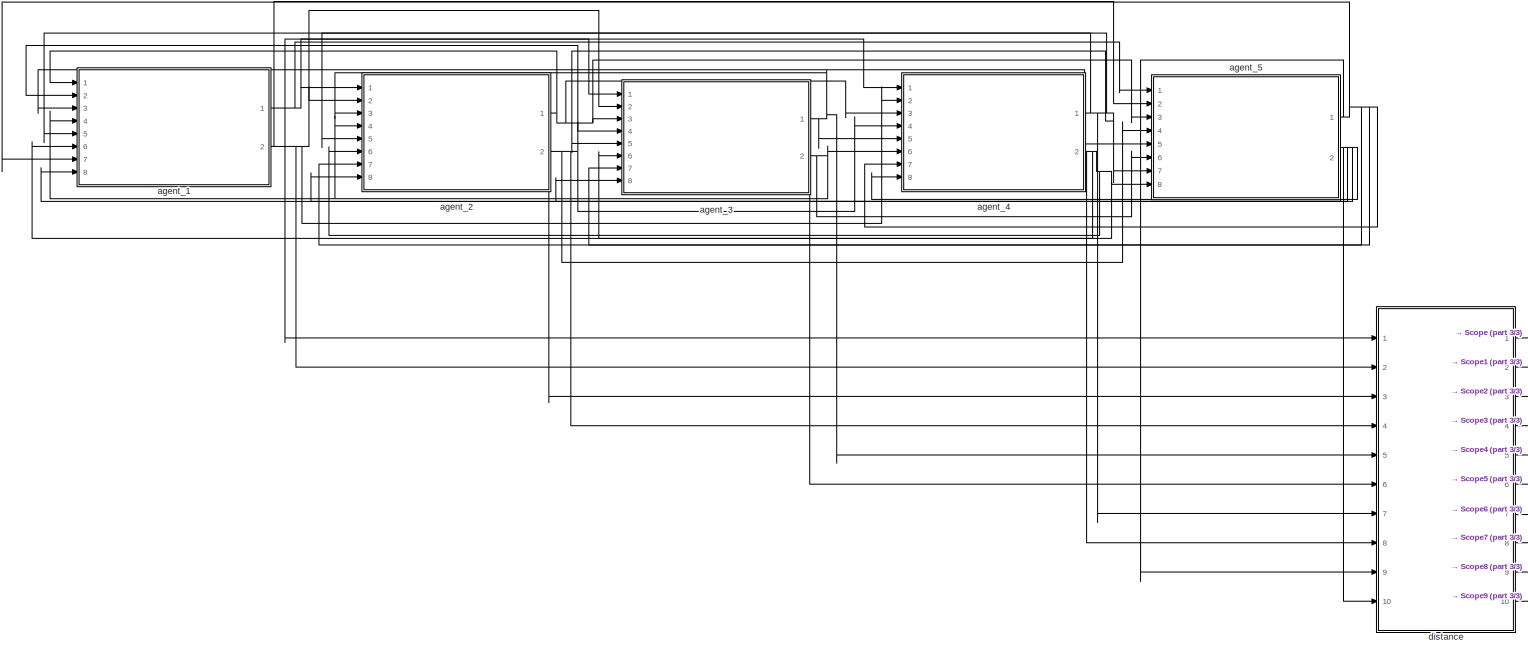
[diagram: root canvas - part 1/3, most of the canvas]
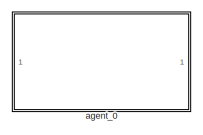
[diagram: root canvas - part 2/3, top left region]
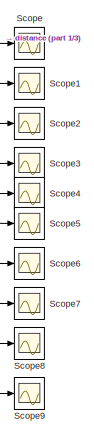
[diagram: root canvas - part 3/3, bottom right region]
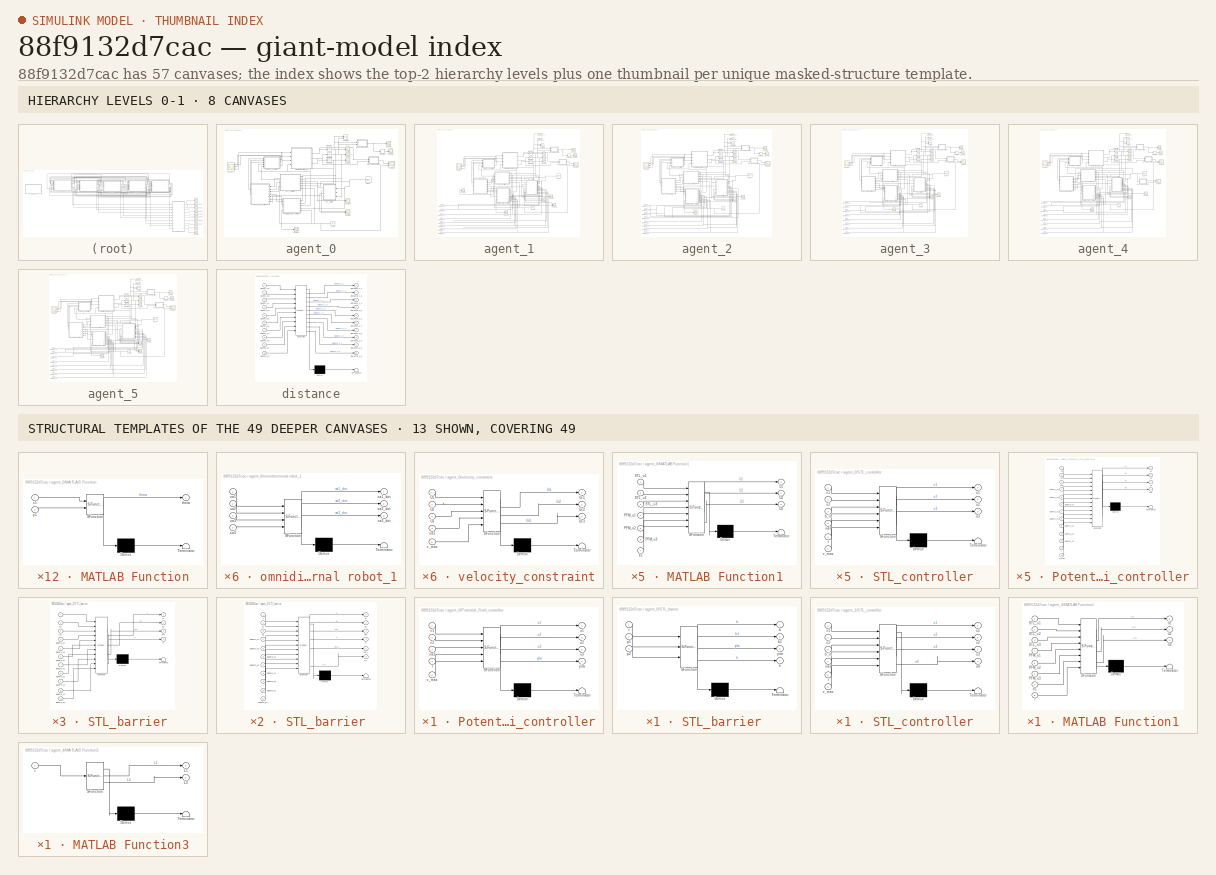
[diagram: thumbnail index - top-2 hierarchy levels (8 canvases) + 13 structural-template representatives of the remaining 49 canvases]
MODEL slx_88f9132d7cac
KIND model
CONFIG AbsTol = auto
CONFIG EnableMultiTasking = off
CONFIG FixedStep = 1e-2
CONFIG MaxStep = auto
CONFIG MinStep = auto
CONFIG RelTol = 1e-3
CONFIG SampleTimeConstraint = Unconstrained
CONFIG SolverName = FixedStepAuto
CONFIG StartTime = 0.0
CONFIG StopTime = 40.0
BLOCK [Scope] Scope
  Floating = off
  NumInputPorts = 1
  Ports = [1]
  ScopeSpecificationString = Simulink.scopes.TimeScopeBlockCfg('CurrentConfiguration', extmgr.ConfigurationSet(extmgr.Configuration('Core','General UI',true),extmgr.Configuration('Core','Source UI',true),extmgr.Configuration('Sources','WiredSimulink',true,'DataLoggingVariableName','D1_2','DataLogging',true,'DataLoggingSaveFormat','StructureWithTime'),extmgr.Configuration('Visuals','Time Domain',true,'SerializedDisplays',{stru...<+1785ch>
BLOCK [Scope] Scope1
  Floating = off
  NumInputPorts = 1
  Ports = [1]
  ScopeSpecificationString = Simulink.scopes.TimeScopeBlockCfg('CurrentConfiguration', extmgr.ConfigurationSet(extmgr.Configuration('Core','General UI',true),extmgr.Configuration('Core','Source UI',true),extmgr.Configuration('Sources','WiredSimulink',true,'DataLoggingVariableName','D1_3','DataLogging',true,'DataLoggingSaveFormat','StructureWithTime'),extmgr.Configuration('Visuals','Time Domain',true,'SerializedDisplays',{stru...<+1779ch>
BLOCK [Scope] Scope2
  Floating = off
  NumInputPorts = 1
  Ports = [1]
  ScopeSpecificationString = Simulink.scopes.TimeScopeBlockCfg('CurrentConfiguration', extmgr.ConfigurationSet(extmgr.Configuration('Core','General UI',true),extmgr.Configuration('Core','Source UI',true),extmgr.Configuration('Sources','WiredSimulink',true,'DataLoggingVariableName','D1_4','DataLogging',true,'DataLoggingSaveFormat','StructureWithTime'),extmgr.Configuration('Visuals','Time Domain',true,'SerializedDisplays',{stru...<+1785ch>
BLOCK [Scope] Scope3
  Floating = off
  NumInputPorts = 1
  Ports = [1]
  ScopeSpecificationString = Simulink.scopes.TimeScopeBlockCfg('CurrentConfiguration', extmgr.ConfigurationSet(extmgr.Configuration('Core','General UI',true),extmgr.Configuration('Core','Source UI',true),extmgr.Configuration('Sources','WiredSimulink',true,'DataLoggingVariableName','D1_5','DataLogging',true,'DataLoggingSaveFormat','StructureWithTime'),extmgr.Configuration('Visuals','Time Domain',true,'SerializedDisplays',{stru...<+1752ch>
BLOCK [Scope] Scope4
  Floating = off
  NumInputPorts = 1
  Ports = [1]
  ScopeSpecificationString = Simulink.scopes.TimeScopeBlockCfg('CurrentConfiguration', extmgr.ConfigurationSet(extmgr.Configuration('Core','General UI',true),extmgr.Configuration('Core','Source UI',true),extmgr.Configuration('Sources','WiredSimulink',true,'DataLoggingVariableName','D2_3','DataLogging',true,'DataLoggingSaveFormat','StructureWithTime'),extmgr.Configuration('Visuals','Time Domain',true,'SerializedDisplays',{stru...<+1754ch>
BLOCK [Scope] Scope5
  Floating = off
  NumInputPorts = 1
  Ports = [1]
  ScopeSpecificationString = Simulink.scopes.TimeScopeBlockCfg('CurrentConfiguration', extmgr.ConfigurationSet(extmgr.Configuration('Core','General UI',true),extmgr.Configuration('Core','Source UI',true),extmgr.Configuration('Sources','WiredSimulink',true,'DataLoggingVariableName','D2_4','DataLogging',true,'DataLoggingSaveFormat','StructureWithTime'),extmgr.Configuration('Visuals','Time Domain',true,'SerializedDisplays',{stru...<+1794ch>
BLOCK [Scope] Scope6
  Floating = off
  NumInputPorts = 1
  Ports = [1]
  ScopeSpecificationString = Simulink.scopes.TimeScopeBlockCfg('CurrentConfiguration', extmgr.ConfigurationSet(extmgr.Configuration('Core','General UI',true),extmgr.Configuration('Core','Source UI',true),extmgr.Configuration('Sources','WiredSimulink',true,'DataLoggingVariableName','D2_5','DataLogging',true,'DataLoggingSaveFormat','StructureWithTime'),extmgr.Configuration('Visuals','Time Domain',true,'SerializedDisplays',{stru...<+1795ch>
BLOCK [Scope] Scope7
  Floating = off
  NumInputPorts = 1
  Ports = [1]
  ScopeSpecificationString = Simulink.scopes.TimeScopeBlockCfg('CurrentConfiguration', extmgr.ConfigurationSet(extmgr.Configuration('Core','General UI',true),extmgr.Configuration('Core','Source UI',true),extmgr.Configuration('Sources','WiredSimulink',true,'DataLoggingVariableName','D3_4','DataLogging',true,'DataLoggingSaveFormat','StructureWithTime'),extmgr.Configuration('Visuals','Time Domain',true,'SerializedDisplays',{stru...<+1779ch>
BLOCK [Scope] Scope8
  Floating = off
  NumInputPorts = 1
  Ports = [1]
  ScopeSpecificationString = Simulink.scopes.TimeScopeBlockCfg('CurrentConfiguration', extmgr.ConfigurationSet(extmgr.Configuration('Core','General UI',true),extmgr.Configuration('Core','Source UI',true),extmgr.Configuration('Sources','WiredSimulink',true,'DataLoggingVariableName','D3_5','DataLogging',true,'DataLoggingSaveFormat','StructureWithTime'),extmgr.Configuration('Visuals','Time Domain',true,'SerializedDisplays',{stru...<+1767ch>
BLOCK [Scope] Scope9
  Floating = off
  NumInputPorts = 1
  Ports = [1]
  ScopeSpecificationString = Simulink.scopes.TimeScopeBlockCfg('CurrentConfiguration', extmgr.ConfigurationSet(extmgr.Configuration('Core','General UI',true),extmgr.Configuration('Core','Source UI',true),extmgr.Configuration('Sources','WiredSimulink',true,'DataLoggingVariableName','D4_5','DataLogging',true,'DataLoggingSaveFormat','StructureWithTime'),extmgr.Configuration('Visuals','Time Domain',true,'SerializedDisplays',{stru...<+1752ch>
BLOCK [SubSystem] agent_0
  Commented = on
  Ports = []
  RequestExecContextInheritance = off
BLOCK [Scope] agent_0/1_a
  Floating = off
  NumInputPorts = 1
  Ports = [1]
  ScopeSpecificationString = Simulink.scopes.TimeScopeBlockCfg('CurrentConfiguration', extmgr.ConfigurationSet(extmgr.Configuration('Core','General UI',true),extmgr.Configuration('Core','Source UI',true),extmgr.Configuration('Sources','WiredSimulink',true,'DataLogging',true,'DataLoggingVariableName','agent2_x1','DataLoggingSaveFormat','StructureWithTime'),extmgr.Configuration('Visuals','Time Domain',true,'SerializedDisplays',...<+1470ch>
BLOCK [Scope] agent_0/1_y
  Floating = off
  NumInputPorts = 1
  Ports = [1]
  ScopeSpecificationString = Simulink.scopes.TimeScopeBlockCfg('CurrentConfiguration', extmgr.ConfigurationSet(extmgr.Configuration('Core','General UI',true),extmgr.Configuration('Core','Source UI',true),extmgr.Configuration('Sources','WiredSimulink',true,'DataLoggingVariableName','agent2_x2','DataLogging',true,'DataLoggingSaveFormat','StructureWithTime'),extmgr.Configuration('Visuals','Time Domain',true,'SerializedDisplays',...<+1475ch>
BLOCK [Clock] agent_0/Clock
  DisplayTime = on
BLOCK [Derivative] agent_0/Derivative
BLOCK [Integrator] agent_0/Integrator
  InitialCondition = 100
  Ports = [1, 1]
BLOCK [Integrator] agent_0/Integrator1
  Ports = [1, 1]
BLOCK [Integrator] agent_0/Integrator2
  Ports = [1, 1]
BLOCK [SubSystem] agent_0/MATLAB Function
  ErrorFcn = Stateflow.Translate.translate
  PermitHierarchicalResolution = ExplicitOnly
  Ports = [2, 1]
  RequestExecContextInheritance = off
  SFBlockType = MATLAB Function
  TreatAsAtomicUnit = on
BLOCK [Demux] agent_0/MATLAB Function/ Demux 
  Outputs = 1
  Ports = [1, 1]
BLOCK [S-Function] agent_0/MATLAB Function/ SFunction 
  EnableBusSupport = on
  FunctionName = sf_sfun
  PortCounts = [2 2]
  Ports = [2, 2]
  SFcnIsStateOwnerBlock = off
  SFunctionDeploymentMode = off
  Tag = Stateflow S-Function 15
BLOCK [Terminator] agent_0/MATLAB Function/ Terminator 
BLOCK [Outport] agent_0/MATLAB Function/theta
  VectorParamsAs1DForOutWhenUnconnected = off
BLOCK [Inport] agent_0/MATLAB Function/x1
BLOCK [Inport] agent_0/MATLAB Function/y1
  Port = 2
BLOCK [SubSystem] agent_0/MATLAB Function1
  ErrorFcn = Stateflow.Translate.translate
  PermitHierarchicalResolution = ExplicitOnly
  Ports = [7, 3]
  RequestExecContextInheritance = off
  SFBlockType = MATLAB Function
  TreatAsAtomicUnit = on
BLOCK [Demux] agent_0/MATLAB Function1/ Demux 
  Outputs = 1
  Ports = [1, 1]
BLOCK [S-Function] agent_0/MATLAB Function1/ SFunction 
  EnableBusSupport = on
  FunctionName = sf_sfun
  PortCounts = [7 4]
  Ports = [7, 4]
  SFcnIsStateOwnerBlock = off
  SFunctionDeploymentMode = off
  Tag = Stateflow S-Function 16
BLOCK [Terminator] agent_0/MATLAB Function1/ Terminator 
BLOCK [Inport] agent_0/MATLAB Function1/PFM_u1
  Port = 4
BLOCK [Inport] agent_0/MATLAB Function1/PFM_u2
  Port = 5
BLOCK [Inport] agent_0/MATLAB Function1/PFM_u3
  Port = 6
BLOCK [Inport] agent_0/MATLAB Function1/STL_u1
BLOCK [Inport] agent_0/MATLAB Function1/STL_u2
  Port = 2
BLOCK [Inport] agent_0/MATLAB Function1/STL_u3
  Port = 3
BLOCK [Outport] agent_0/MATLAB Function1/U1
BLOCK [Outport] agent_0/MATLAB Function1/U2
  Port = 2
BLOCK [Outport] agent_0/MATLAB Function1/U3
  Port = 3
BLOCK [Inport] agent_0/MATLAB Function1/b1
  Port = 7
BLOCK [SubSystem] agent_0/MATLAB Function2
  ErrorFcn = Stateflow.Translate.translate
  PermitHierarchicalResolution = ExplicitOnly
  Ports = [2, 1]
  RequestExecContextInheritance = off
  SFBlockType = MATLAB Function
  TreatAsAtomicUnit = on
BLOCK [Demux] agent_0/MATLAB Function2/ Demux 
  Outputs = 1
  Ports = [1, 1]
BLOCK [S-Function] agent_0/MATLAB Function2/ SFunction 
  EnableBusSupport = on
  FunctionName = sf_sfun
  PortCounts = [2 2]
  Ports = [2, 2]
  SFcnIsStateOwnerBlock = off
  SFunctionDeploymentMode = off
  Tag = Stateflow S-Function 17
BLOCK [Terminator] agent_0/MATLAB Function2/ Terminator 
BLOCK [Outport] agent_0/MATLAB Function2/v
  VectorParamsAs1DForOutWhenUnconnected = off
BLOCK [Inport] agent_0/MATLAB Function2/v1
BLOCK [Inport] agent_0/MATLAB Function2/v2
  Port = 2
BLOCK [SubSystem] agent_0/Potential_Field_controller
  ErrorFcn = Stateflow.Translate.translate
  PermitHierarchicalResolution = ExplicitOnly
  Ports = [5, 4]
  RequestExecContextInheritance = off
  SFBlockType = MATLAB Function
  TreatAsAtomicUnit = on
BLOCK [Demux] agent_0/Potential_Field_controller/ Demux 
  Outputs = 1
  Ports = [1, 1]
BLOCK [S-Function] agent_0/Potential_Field_controller/ SFunction 
  EnableBusSupport = on
  FunctionName = sf_sfun
  PortCounts = [5 5]
  Ports = [5, 5]
  SFcnIsStateOwnerBlock = off
  SFunctionDeploymentMode = off
  Tag = Stateflow S-Function 18
BLOCK [Terminator] agent_0/Potential_Field_controller/ Terminator 
BLOCK [Inport] agent_0/Potential_Field_controller/t
  Port = 4
BLOCK [Outport] agent_0/Potential_Field_controller/u1
BLOCK [Outport] agent_0/Potential_Field_controller/u2
  Port = 2
BLOCK [Outport] agent_0/Potential_Field_controller/u3
  Port = 3
BLOCK [Inport] agent_0/Potential_Field_controller/v_max
  Port = 5
BLOCK [Inport] agent_0/Potential_Field_controller/x1
BLOCK [Inport] agent_0/Potential_Field_controller/x2
  Port = 2
BLOCK [Inport] agent_0/Potential_Field_controller/xa3
  Port = 3
BLOCK [Outport] agent_0/Potential_Field_controller/yita
  Port = 4
BLOCK [SubSystem] agent_0/STL_barrier 
  ErrorFcn = Stateflow.Translate.translate
  PermitHierarchicalResolution = ExplicitOnly
  Ports = [3, 4]
  RequestExecContextInheritance = off
  SFBlockType = MATLAB Function
  TreatAsAtomicUnit = on
BLOCK [Demux] agent_0/STL_barrier / Demux 
  Outputs = 1
  Ports = [1, 1]
BLOCK [S-Function] agent_0/STL_barrier / SFunction 
  EnableBusSupport = on
  FunctionName = sf_sfun
  PortCounts = [3 5]
  Ports = [3, 5]
  SFcnIsStateOwnerBlock = off
  SFunctionDeploymentMode = off
  Tag = Stateflow S-Function 19
BLOCK [Terminator] agent_0/STL_barrier / Terminator 
BLOCK [Outport] agent_0/STL_barrier /b
BLOCK [Outport] agent_0/STL_barrier /b1
  Port = 2
BLOCK [Outport] agent_0/STL_barrier /h
  Port = 4
  VectorParamsAs1DForOutWhenUnconnected = off
BLOCK [Inport] agent_0/STL_barrier /p1
  Port = 2
BLOCK [Inport] agent_0/STL_barrier /p2
  Port = 3
BLOCK [Inport] agent_0/STL_barrier /t
BLOCK [Outport] agent_0/STL_barrier /yita
  Port = 3
  VectorParamsAs1DForOutWhenUnconnected = off
BLOCK [SubSystem] agent_0/STL_controller
  ErrorFcn = Stateflow.Translate.translate
  PermitHierarchicalResolution = ExplicitOnly
  Ports = [6, 3]
  RequestExecContextInheritance = off
  SFBlockType = MATLAB Function
  TreatAsAtomicUnit = on
BLOCK [Demux] agent_0/STL_controller/ Demux 
  Outputs = 1
  Ports = [1, 1]
BLOCK [S-Function] agent_0/STL_controller/ SFunction 
  EnableBusSupport = on
  FunctionName = sf_sfun
  PortCounts = [6 4]
  Ports = [6, 4]
  SFcnIsStateOwnerBlock = off
  SFunctionDeploymentMode = off
  Tag = Stateflow S-Function 22
BLOCK [Terminator] agent_0/STL_controller/ Terminator 
BLOCK [Inport] agent_0/STL_controller/b_in
  Port = 3
BLOCK [Inport] agent_0/STL_controller/t
  Port = 5
BLOCK [Outport] agent_0/STL_controller/u1
BLOCK [Outport] agent_0/STL_controller/u2
  Port = 2
BLOCK [Outport] agent_0/STL_controller/u3
  Port = 3
BLOCK [Inport] agent_0/STL_controller/v_max
  Port = 6
BLOCK [Inport] agent_0/STL_controller/x1
BLOCK [Inport] agent_0/STL_controller/x2
  Port = 2
BLOCK [Inport] agent_0/STL_controller/xa3
  Port = 4
BLOCK [Scope] agent_0/Scope
  Floating = off
  NumInputPorts = 3
  Ports = [3]
  ScopeSpecificationString = Simulink.scopes.TimeScopeBlockCfg('CurrentConfiguration', extmgr.ConfigurationSet(extmgr.Configuration('Core','General UI',true),extmgr.Configuration('Core','Source UI',true),extmgr.Configuration('Sources','WiredSimulink',true,'DataLoggingVariableName','agent2_U3','DataLogging',true,'DataLoggingSaveFormat','StructureWithTime'),extmgr.Configuration('Visuals','Time Domain',true,'SerializedDisplays',...<+1616ch>
BLOCK [Scope] agent_0/Scope1
  Floating = off
  NumInputPorts = 2
  Ports = [2]
  ScopeSpecificationString = Simulink.scopes.TimeScopeBlockCfg('CurrentConfiguration', extmgr.ConfigurationSet(extmgr.Configuration('Core','General UI',true),extmgr.Configuration('Core','Source UI',true),extmgr.Configuration('Sources','WiredSimulink',true,'DataLoggingVariableName','agent2_gamma_and_h','DataLogging',true,'DataLoggingSaveFormat','StructureWithTime'),extmgr.Configuration('Visuals','Time Domain',true,'SerializedD...<+1592ch>
BLOCK [Scope] agent_0/Scope2
  Floating = off
  NumInputPorts = 1
  Ports = [1]
  ScopeSpecificationString = Simulink.scopes.TimeScopeBlockCfg('CurrentConfiguration', extmgr.ConfigurationSet(extmgr.Configuration('Core','General UI',true),extmgr.Configuration('Core','Source UI',true),extmgr.Configuration('Sources','WiredSimulink',true,'DataLoggingVariableName','ScopeData5'),extmgr.Configuration('Visuals','Time Domain',true,'SerializedDisplays',{struct('MinYLimReal','-86.93912','MaxYLimReal','9.6599','YLab...<+1448ch>  <repeated x6 — deduplicated; at blocks: Scope2>
BLOCK [Scope] agent_0/Scope3
  Floating = off
  NumInputPorts = 1
  Ports = [1]
  ScopeSpecificationString = Simulink.scopes.TimeScopeBlockCfg('CurrentConfiguration', extmgr.ConfigurationSet(extmgr.Configuration('Core','General UI',true),extmgr.Configuration('Core','Source UI',true),extmgr.Configuration('Sources','WiredSimulink',true,'DataLoggingVariableName','ScopeData6'),extmgr.Configuration('Visuals','Time Domain',true,'SerializedDisplays',{struct('MinYLimReal','-2.78389','MaxYLimReal','25.05505','YLa...<+1452ch>  <repeated x6 — deduplicated; at blocks: Scope3>
BLOCK [Scope] agent_0/Scope4
  Floating = off
  NumInputPorts = 2
  Ports = [2]
  ScopeSpecificationString = Simulink.scopes.TimeScopeBlockCfg('CurrentConfiguration', extmgr.ConfigurationSet(extmgr.Configuration('Core','General UI',true),extmgr.Configuration('Core','Source UI',true),extmgr.Configuration('Sources','WiredSimulink',true,'DataLoggingVariableName','ScopeData7'),extmgr.Configuration('Visuals','Time Domain',true,'SerializedDisplays',{struct('MinYLimReal','-6.02015','MaxYLimReal','56.22446','YLa...<+1463ch>  <repeated x4 — deduplicated; at blocks: Scope4>
BLOCK [Scope] agent_0/Scope5
  Floating = off
  NumInputPorts = 1
  Ports = [1]
  ScopeSpecificationString = Simulink.scopes.TimeScopeBlockCfg('CurrentConfiguration', extmgr.ConfigurationSet(extmgr.Configuration('Core','General UI',true),extmgr.Configuration('Core','Source UI',true),extmgr.Configuration('Sources','WiredSimulink',true,'DataLoggingVariableName','ScopeData8'),extmgr.Configuration('Visuals','Time Domain',true,'SerializedDisplays',{struct('MinYLimReal','-1.76715','MaxYLimReal','0.19635','YLab...<+1439ch>  <repeated x6 — deduplicated; at blocks: Scope5>
BLOCK [Scope] agent_0/Scope6
  Floating = off
  NumInputPorts = 1
  Ports = [1]
  ScopeSpecificationString = Simulink.scopes.TimeScopeBlockCfg('CurrentConfiguration', extmgr.ConfigurationSet(extmgr.Configuration('Core','General UI',true),extmgr.Configuration('Core','Source UI',true),extmgr.Configuration('Sources','WiredSimulink',true,'DataLoggingVariableName','ScopeData9'),extmgr.Configuration('Visuals','Time Domain',true,'SerializedDisplays',{struct('MinYLimReal','-0.5189','MaxYLimReal','3.73042','YLabe...<+1440ch>
BLOCK [Scope] agent_0/Scope7
  Floating = off
  NumInputPorts = 1
  Ports = [1]
  ScopeSpecificationString = Simulink.scopes.TimeScopeBlockCfg('CurrentConfiguration', extmgr.ConfigurationSet(extmgr.Configuration('Core','General UI',true),extmgr.Configuration('Core','Source UI',true),extmgr.Configuration('Sources','WiredSimulink',true,'DataLoggingVariableName','ScopeData10'),extmgr.Configuration('Visuals','Time Domain',true,'SerializedDisplays',{struct('MinYLimReal','-13119.52201','MaxYLimReal','118075.69...<+1454ch>  <repeated x6 — deduplicated; at blocks: Scope7>
BLOCK [Reference] agent_0/XY Graph  REF=simulink/Sinks/XY Graph
  Ports = [2]
  SourceBlock = simulink/Sinks/XY Graph
  SourceProductBaseCode = SL
  SourceType = XY scope.
BLOCK [SubSystem] agent_0/omnidirectional robot_1
  ErrorFcn = Stateflow.Translate.translate
  PermitHierarchicalResolution = ExplicitOnly
  Ports = [4, 3]
  RequestExecContextInheritance = off
  SFBlockType = MATLAB Function
  TreatAsAtomicUnit = on
BLOCK [Demux] agent_0/omnidirectional robot_1/ Demux 
  Outputs = 1
  Ports = [1, 1]
BLOCK [S-Function] agent_0/omnidirectional robot_1/ SFunction 
  EnableBusSupport = on
  FunctionName = sf_sfun
  PortCounts = [4 4]
  Ports = [4, 4]
  SFcnIsStateOwnerBlock = off
  SFunctionDeploymentMode = off
  Tag = Stateflow S-Function 23
BLOCK [Terminator] agent_0/omnidirectional robot_1/ Terminator 
BLOCK [Inport] agent_0/omnidirectional robot_1/ua1
BLOCK [Inport] agent_0/omnidirectional robot_1/ua2
  Port = 2
BLOCK [Inport] agent_0/omnidirectional robot_1/ua3
  Port = 3
BLOCK [Outport] agent_0/omnidirectional robot_1/xa1_dot
BLOCK [Outport] agent_0/omnidirectional robot_1/xa2_dot
  Port = 2
BLOCK [Inport] agent_0/omnidirectional robot_1/xa3
  Port = 4
BLOCK [Outport] agent_0/omnidirectional robot_1/xa3_dot
  Port = 3
BLOCK [Constant] agent_0/v_max
  Value = 50
BLOCK [SubSystem] agent_0/velocity_constraint
  ErrorFcn = Stateflow.Translate.translate
  PermitHierarchicalResolution = ExplicitOnly
  Ports = [5, 3]
  RequestExecContextInheritance = off
  SFBlockType = MATLAB Function
  TreatAsAtomicUnit = on
BLOCK [Demux] agent_0/velocity_constraint/ Demux 
  Outputs = 1
  Ports = [1, 1]
BLOCK [S-Function] agent_0/velocity_constraint/ SFunction 
  EnableBusSupport = on
  FunctionName = sf_sfun
  PortCounts = [5 4]
  Ports = [5, 4]
  SFcnIsStateOwnerBlock = off
  SFunctionDeploymentMode = off
  Tag = Stateflow S-Function 24
BLOCK [Terminator] agent_0/velocity_constraint/ Terminator 
BLOCK [Inport] agent_0/velocity_constraint/U1
BLOCK [Inport] agent_0/velocity_constraint/U2
  Port = 2
BLOCK [Inport] agent_0/velocity_constraint/U3
  Port = 3
BLOCK [Outport] agent_0/velocity_constraint/Uc1
BLOCK [Outport] agent_0/velocity_constraint/Uc2
  Port = 2
BLOCK [Outport] agent_0/velocity_constraint/Uc3
  Port = 3
BLOCK [Inport] agent_0/velocity_constraint/v_max
  Port = 5
BLOCK [Inport] agent_0/velocity_constraint/xa3
  Port = 4
BLOCK [SubSystem] agent_1
  Ports = [8, 2]
  RequestExecContextInheritance = off
BLOCK [Scope] agent_1/1_a
  Floating = off
  NumInputPorts = 1
  Ports = [1]
  ScopeSpecificationString = Simulink.scopes.TimeScopeBlockCfg('CurrentConfiguration', extmgr.ConfigurationSet(extmgr.Configuration('Core','General UI',true),extmgr.Configuration('Core','Source UI',true),extmgr.Configuration('Sources','WiredSimulink',true,'DataLogging',true,'DataLoggingVariableName','agent1_x1','DataLoggingSaveFormat','StructureWithTime'),extmgr.Configuration('Visuals','Time Domain',true,'SerializedDisplays',...<+1462ch>
BLOCK [Scope] agent_1/1_y
  Floating = off
  NumInputPorts = 1
  Ports = [1]
  ScopeSpecificationString = Simulink.scopes.TimeScopeBlockCfg('CurrentConfiguration', extmgr.ConfigurationSet(extmgr.Configuration('Core','General UI',true),extmgr.Configuration('Core','Source UI',true),extmgr.Configuration('Sources','WiredSimulink',true,'DataLoggingVariableName','agent1_x2','DataLogging',true,'DataLoggingSaveFormat','StructureWithTime'),extmgr.Configuration('Visuals','Time Domain',true,'SerializedDisplays',...<+1471ch>
BLOCK [Clock] agent_1/Clock
  DisplayTime = on
BLOCK [Derivative] agent_1/Derivative
BLOCK [Integrator] agent_1/Integrator
  InitialCondition = 0.5
  Ports = [1, 1]
BLOCK [Integrator] agent_1/Integrator1
  Ports = [1, 1]
BLOCK [Integrator] agent_1/Integrator2
  Ports = [1, 1]
BLOCK [SubSystem] agent_1/MATLAB Function
  ErrorFcn = Stateflow.Translate.translate
  PermitHierarchicalResolution = ExplicitOnly
  Ports = [2, 1]
  RequestExecContextInheritance = off
  SFBlockType = MATLAB Function
  TreatAsAtomicUnit = on
BLOCK [Demux] agent_1/MATLAB Function/ Demux 
  Outputs = 1
  Ports = [1, 1]
BLOCK [S-Function] agent_1/MATLAB Function/ SFunction 
  EnableBusSupport = on
  FunctionName = sf_sfun
  PortCounts = [2 2]
  Ports = [2, 2]
  SFcnIsStateOwnerBlock = off
  SFunctionDeploymentMode = off
  Tag = Stateflow S-Function 4
BLOCK [Terminator] agent_1/MATLAB Function/ Terminator 
BLOCK [Outport] agent_1/MATLAB Function/theta
  VectorParamsAs1DForOutWhenUnconnected = off
BLOCK [Inport] agent_1/MATLAB Function/x1
BLOCK [Inport] agent_1/MATLAB Function/y1
  Port = 2
BLOCK [SubSystem] agent_1/MATLAB Function1
  ErrorFcn = Stateflow.Translate.translate
  PermitHierarchicalResolution = ExplicitOnly
  Ports = [7, 3]
  RequestExecContextInheritance = off
  SFBlockType = MATLAB Function
  TreatAsAtomicUnit = on
BLOCK [Demux] agent_1/MATLAB Function1/ Demux 
  Outputs = 1
  Ports = [1, 1]
BLOCK [S-Function] agent_1/MATLAB Function1/ SFunction 
  EnableBusSupport = on
  FunctionName = sf_sfun
  PortCounts = [7 4]
  Ports = [7, 4]
  SFcnIsStateOwnerBlock = off
  SFunctionDeploymentMode = off
  Tag = Stateflow S-Function 6
BLOCK [Terminator] agent_1/MATLAB Function1/ Terminator 
BLOCK [Inport] agent_1/MATLAB Function1/PFM_u1
  Port = 4
BLOCK [Inport] agent_1/MATLAB Function1/PFM_u2
  Port = 5
BLOCK [Inport] agent_1/MATLAB Function1/PFM_u3
  Port = 6
BLOCK [Inport] agent_1/MATLAB Function1/STL_u1
BLOCK [Inport] agent_1/MATLAB Function1/STL_u2
  Port = 2
BLOCK [Inport] agent_1/MATLAB Function1/STL_u3
  Port = 3
BLOCK [Outport] agent_1/MATLAB Function1/U1
BLOCK [Outport] agent_1/MATLAB Function1/U2
  Port = 2
BLOCK [Outport] agent_1/MATLAB Function1/U3
  Port = 3
BLOCK [Inport] agent_1/MATLAB Function1/b1
  Port = 7
BLOCK [SubSystem] agent_1/MATLAB Function2
  ErrorFcn = Stateflow.Translate.translate
  PermitHierarchicalResolution = ExplicitOnly
  Ports = [2, 1]
  RequestExecContextInheritance = off
  SFBlockType = MATLAB Function
  TreatAsAtomicUnit = on
BLOCK [Demux] agent_1/MATLAB Function2/ Demux 
  Outputs = 1
  Ports = [1, 1]
BLOCK [S-Function] agent_1/MATLAB Function2/ SFunction 
  EnableBusSupport = on
  FunctionName = sf_sfun
  PortCounts = [2 2]
  Ports = [2, 2]
  SFcnIsStateOwnerBlock = off
  SFunctionDeploymentMode = off
  Tag = Stateflow S-Function 20
BLOCK [Terminator] agent_1/MATLAB Function2/ Terminator 
BLOCK [Outport] agent_1/MATLAB Function2/v
  VectorParamsAs1DForOutWhenUnconnected = off
BLOCK [Inport] agent_1/MATLAB Function2/v1
BLOCK [Inport] agent_1/MATLAB Function2/v2
  Port = 2
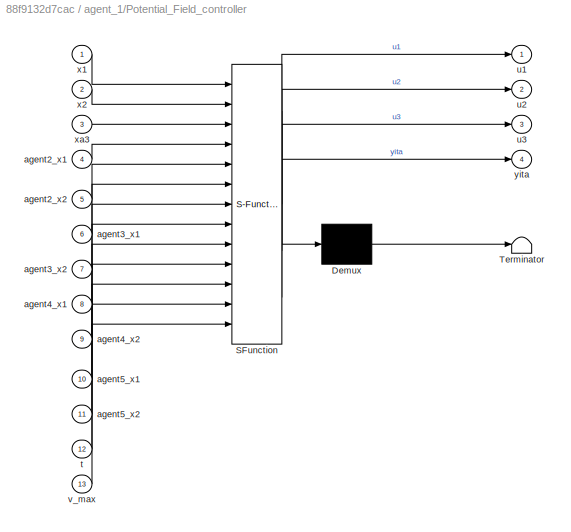
BLOCK [SubSystem] agent_1/Potential_Field_controller
  ErrorFcn = Stateflow.Translate.translate
  PermitHierarchicalResolution = ExplicitOnly
  Ports = [13, 4]
  RequestExecContextInheritance = off
  SFBlockType = MATLAB Function
  TreatAsAtomicUnit = on
BLOCK [Demux] agent_1/Potential_Field_controller/ Demux 
  Outputs = 1
  Ports = [1, 1]
BLOCK [S-Function] agent_1/Potential_Field_controller/ SFunction 
  EnableBusSupport = on
  FunctionName = sf_sfun
  PortCounts = [13 5]
  Ports = [13, 5]
  SFcnIsStateOwnerBlock = off
  SFunctionDeploymentMode = off
  Tag = Stateflow S-Function 5
BLOCK [Terminator] agent_1/Potential_Field_controller/ Terminator 
BLOCK [Inport] agent_1/Potential_Field_controller/agent2_x1
  Port = 4
BLOCK [Inport] agent_1/Potential_Field_controller/agent2_x2
  Port = 5
BLOCK [Inport] agent_1/Potential_Field_controller/agent3_x1
  Port = 6
BLOCK [Inport] agent_1/Potential_Field_controller/agent3_x2
  Port = 7
BLOCK [Inport] agent_1/Potential_Field_controller/agent4_x1
  Port = 8
BLOCK [Inport] agent_1/Potential_Field_controller/agent4_x2
  Port = 9
BLOCK [Inport] agent_1/Potential_Field_controller/agent5_x1
  Port = 10
BLOCK [Inport] agent_1/Potential_Field_controller/agent5_x2
  Port = 11
BLOCK [Inport] agent_1/Potential_Field_controller/t
  Port = 12
BLOCK [Outport] agent_1/Potential_Field_controller/u1
BLOCK [Outport] agent_1/Potential_Field_controller/u2
  Port = 2
BLOCK [Outport] agent_1/Potential_Field_controller/u3
  Port = 3
BLOCK [Inport] agent_1/Potential_Field_controller/v_max
  Port = 13
BLOCK [Inport] agent_1/Potential_Field_controller/x1
BLOCK [Inport] agent_1/Potential_Field_controller/x2
  Port = 2
BLOCK [Inport] agent_1/Potential_Field_controller/xa3
  Port = 3
BLOCK [Outport] agent_1/Potential_Field_controller/yita
  Port = 4
BLOCK [SubSystem] agent_1/STL_barrier 
  ErrorFcn = Stateflow.Translate.translate
  PermitHierarchicalResolution = ExplicitOnly
  Ports = [11, 6]
  RequestExecContextInheritance = off
  SFBlockType = MATLAB Function
  TreatAsAtomicUnit = on
BLOCK [Demux] agent_1/STL_barrier / Demux 
  Outputs = 1
  Ports = [1, 1]
BLOCK [S-Function] agent_1/STL_barrier / SFunction 
  EnableBusSupport = on
  FunctionName = sf_sfun
  PortCounts = [11 7]
  Ports = [11, 7]
  SFcnIsStateOwnerBlock = off
  SFunctionDeploymentMode = off
  Tag = Stateflow S-Function 1
BLOCK [Terminator] agent_1/STL_barrier / Terminator 
BLOCK [Inport] agent_1/STL_barrier /agent2_x1
  Port = 4
BLOCK [Inport] agent_1/STL_barrier /agent2_x2
  Port = 5
BLOCK [Inport] agent_1/STL_barrier /agent3_x1
  Port = 6
BLOCK [Inport] agent_1/STL_barrier /agent3_x2
  Port = 7
BLOCK [Inport] agent_1/STL_barrier /agent4_x1
  Port = 8
BLOCK [Inport] agent_1/STL_barrier /agent4_x2
  Port = 9
BLOCK [Inport] agent_1/STL_barrier /agent5_x1
  Port = 10
BLOCK [Inport] agent_1/STL_barrier /agent5_x2
  Port = 11
BLOCK [Outport] agent_1/STL_barrier /b
BLOCK [Outport] agent_1/STL_barrier /b1
  Port = 2
BLOCK [Outport] agent_1/STL_barrier /h
  Port = 4
  VectorParamsAs1DForOutWhenUnconnected = off
BLOCK [Outport] agent_1/STL_barrier /h_1
  Port = 6
BLOCK [Inport] agent_1/STL_barrier /p1
  Port = 2
BLOCK [Inport] agent_1/STL_barrier /p2
  Port = 3
BLOCK [Inport] agent_1/STL_barrier /t
BLOCK [Outport] agent_1/STL_barrier /yita
  Port = 3
  VectorParamsAs1DForOutWhenUnconnected = off
BLOCK [Outport] agent_1/STL_barrier /yita_1
  Port = 5
BLOCK [SubSystem] agent_1/STL_controller
  ErrorFcn = Stateflow.Translate.translate
  PermitHierarchicalResolution = ExplicitOnly
  Ports = [6, 4]
  RequestExecContextInheritance = off
  SFBlockType = MATLAB Function
  TreatAsAtomicUnit = on
BLOCK [Demux] agent_1/STL_controller/ Demux 
  Outputs = 1
  Ports = [1, 1]
BLOCK [S-Function] agent_1/STL_controller/ SFunction 
  EnableBusSupport = on
  FunctionName = sf_sfun
  PortCounts = [6 5]
  Ports = [6, 5]
  SFcnIsStateOwnerBlock = off
  SFunctionDeploymentMode = off
  Tag = Stateflow S-Function 3
BLOCK [Terminator] agent_1/STL_controller/ Terminator 
BLOCK [Inport] agent_1/STL_controller/b_in
  Port = 3
BLOCK [Inport] agent_1/STL_controller/t
  Port = 5
BLOCK [Outport] agent_1/STL_controller/u1
BLOCK [Outport] agent_1/STL_controller/u2
  Port = 2
BLOCK [Outport] agent_1/STL_controller/u3
  Port = 3
BLOCK [Outport] agent_1/STL_controller/u4
  Port = 4
BLOCK [Inport] agent_1/STL_controller/v_max
  Port = 6
BLOCK [Inport] agent_1/STL_controller/x1
BLOCK [Inport] agent_1/STL_controller/x2
  Port = 2
BLOCK [Inport] agent_1/STL_controller/xa3
  Port = 4
BLOCK [Scope] agent_1/Scope
  Floating = off
  NumInputPorts = 3
  Ports = [3]
  ScopeSpecificationString = Simulink.scopes.TimeScopeBlockCfg('CurrentConfiguration', extmgr.ConfigurationSet(extmgr.Configuration('Core','General UI',true),extmgr.Configuration('Core','Source UI',true),extmgr.Configuration('Sources','WiredSimulink',true,'DataLoggingVariableName','agent1_U3','DataLogging',true,'DataLoggingSaveFormat','StructureWithTime'),extmgr.Configuration('Visuals','Time Domain',true,'SerializedDisplays',...<+1616ch>
BLOCK [Scope] agent_1/Scope1
  Floating = off
  NumInputPorts = 2
  Ports = [2]
  ScopeSpecificationString = Simulink.scopes.TimeScopeBlockCfg('CurrentConfiguration', extmgr.ConfigurationSet(extmgr.Configuration('Core','General UI',true),extmgr.Configuration('Core','Source UI',true),extmgr.Configuration('Sources','WiredSimulink',true,'DataLoggingVariableName','agent1_gamma_and_h','DataLogging',true,'DataLoggingSaveFormat','StructureWithTime'),extmgr.Configuration('Visuals','Time Domain',true,'SerializedD...<+1592ch>
BLOCK [Scope] agent_1/Scope2
  Floating = off
  NumInputPorts = 1
  Ports = [1]
BLOCK [Scope] agent_1/Scope3
  Floating = off
  NumInputPorts = 1
  Ports = [1]
BLOCK [Scope] agent_1/Scope4
  Floating = off
  NumInputPorts = 2
  Ports = [2]
BLOCK [Scope] agent_1/Scope5
  Floating = off
  NumInputPorts = 1
  Ports = [1]
BLOCK [Scope] agent_1/Scope6
  Floating = off
  NumInputPorts = 1
  Ports = [1]
  ScopeSpecificationString = Simulink.scopes.TimeScopeBlockCfg('CurrentConfiguration', extmgr.ConfigurationSet(extmgr.Configuration('Core','General UI',true),extmgr.Configuration('Core','Source UI',true),extmgr.Configuration('Sources','WiredSimulink',true,'DataLoggingVariableName','ScopeData9'),extmgr.Configuration('Visuals','Time Domain',true,'SerializedDisplays',{struct('MinYLimReal','-0.5189','MaxYLimReal','3.73042','YLabe...<+1440ch>
BLOCK [Scope] agent_1/Scope7
  Floating = off
  NumInputPorts = 1
  Ports = [1]
BLOCK [Scope] agent_1/Scope8
  Floating = off
  NumInputPorts = 2
  Ports = [2]
  ScopeSpecificationString = Simulink.scopes.TimeScopeBlockCfg('CurrentConfiguration', extmgr.ConfigurationSet(extmgr.Configuration('Core','General UI',true),extmgr.Configuration('Core','Source UI',true),extmgr.Configuration('Sources','WiredSimulink',true,'DataLoggingVariableName','agent1_gamma_h_2','DataLogging',true,'DataLoggingSaveFormat','StructureWithTime'),extmgr.Configuration('Visuals','Time Domain',true,'SerializedDis...<+1597ch>
BLOCK [Scope] agent_1/Scope9
  Floating = off
  NumInputPorts = 1
  Ports = [1]
  ScopeSpecificationString = Simulink.scopes.TimeScopeBlockCfg('CurrentConfiguration', extmgr.ConfigurationSet(extmgr.Configuration('Core','General UI',true),extmgr.Configuration('Core','Source UI',true),extmgr.Configuration('Sources','WiredSimulink',true,'DataLoggingVariableName','ScopeData1'),extmgr.Configuration('Visuals','Time Domain',true,'SerializedDisplays',{struct('MinYLimReal','-9.49028','MaxYLimReal','85.41255','YLa...<+1435ch>
BLOCK [Reference] agent_1/XY Graph  REF=simulink/Sinks/XY Graph
  Ports = [2]
  SourceBlock = simulink/Sinks/XY Graph
  SourceProductBaseCode = SL
  SourceType = XY scope.
BLOCK [Outport] agent_1/agent1_x1
BLOCK [Outport] agent_1/agent1_x2
  Port = 2
BLOCK [Inport] agent_1/agent2_x1
BLOCK [Inport] agent_1/agent2_x2
  Port = 2
BLOCK [Inport] agent_1/agent3_x1
  Port = 3
BLOCK [Inport] agent_1/agent3_x2
  Port = 4
BLOCK [Inport] agent_1/agent4_x1
  Port = 5
BLOCK [Inport] agent_1/agent4_x2
  Port = 6
BLOCK [Inport] agent_1/agent5_x1
  Port = 7
BLOCK [Inport] agent_1/agent5_x2
  Port = 8
BLOCK [SubSystem] agent_1/omnidirectional robot_1
  ErrorFcn = Stateflow.Translate.translate
  PermitHierarchicalResolution = ExplicitOnly
  Ports = [4, 3]
  RequestExecContextInheritance = off
  SFBlockType = MATLAB Function
  TreatAsAtomicUnit = on
BLOCK [Demux] agent_1/omnidirectional robot_1/ Demux 
  Outputs = 1
  Ports = [1, 1]
BLOCK [S-Function] agent_1/omnidirectional robot_1/ SFunction 
  EnableBusSupport = on
  FunctionName = sf_sfun
  PortCounts = [4 4]
  Ports = [4, 4]
  SFcnIsStateOwnerBlock = off
  SFunctionDeploymentMode = off
  Tag = Stateflow S-Function 2
BLOCK [Terminator] agent_1/omnidirectional robot_1/ Terminator 
BLOCK [Inport] agent_1/omnidirectional robot_1/ua1
BLOCK [Inport] agent_1/omnidirectional robot_1/ua2
  Port = 2
BLOCK [Inport] agent_1/omnidirectional robot_1/ua3
  Port = 3
BLOCK [Outport] agent_1/omnidirectional robot_1/xa1_dot
BLOCK [Outport] agent_1/omnidirectional robot_1/xa2_dot
  Port = 2
BLOCK [Inport] agent_1/omnidirectional robot_1/xa3
  Port = 4
BLOCK [Outport] agent_1/omnidirectional robot_1/xa3_dot
  Port = 3
BLOCK [Constant] agent_1/v_max
  Value = 50
BLOCK [SubSystem] agent_1/velocity_constraint
  ErrorFcn = Stateflow.Translate.translate
  PermitHierarchicalResolution = ExplicitOnly
  Ports = [5, 3]
  RequestExecContextInheritance = off
  SFBlockType = MATLAB Function
  TreatAsAtomicUnit = on
BLOCK [Demux] agent_1/velocity_constraint/ Demux 
  Outputs = 1
  Ports = [1, 1]
BLOCK [S-Function] agent_1/velocity_constraint/ SFunction 
  EnableBusSupport = on
  FunctionName = sf_sfun
  PortCounts = [5 4]
  Ports = [5, 4]
  SFcnIsStateOwnerBlock = off
  SFunctionDeploymentMode = off
  Tag = Stateflow S-Function 21
BLOCK [Terminator] agent_1/velocity_constraint/ Terminator 
BLOCK [Inport] agent_1/velocity_constraint/U1
BLOCK [Inport] agent_1/velocity_constraint/U2
  Port = 2
BLOCK [Inport] agent_1/velocity_constraint/U3
  Port = 3
BLOCK [Outport] agent_1/velocity_constraint/Uc1
BLOCK [Outport] agent_1/velocity_constraint/Uc2
  Port = 2
BLOCK [Outport] agent_1/velocity_constraint/Uc3
  Port = 3
BLOCK [Inport] agent_1/velocity_constraint/v_max
  Port = 5
BLOCK [Inport] agent_1/velocity_constraint/xa3
  Port = 4
BLOCK [SubSystem] agent_2
  Ports = [8, 2]
  RequestExecContextInheritance = off
BLOCK [Scope] agent_2/1_a
  Floating = off
  NumInputPorts = 1
  Ports = [1]
  ScopeSpecificationString = Simulink.scopes.TimeScopeBlockCfg('CurrentConfiguration', extmgr.ConfigurationSet(extmgr.Configuration('Core','General UI',true),extmgr.Configuration('Core','Source UI',true),extmgr.Configuration('Sources','WiredSimulink',true,'DataLogging',true,'DataLoggingVariableName','agent2_x1','DataLoggingSaveFormat','StructureWithTime'),extmgr.Configuration('Visuals','Time Domain',true,'SerializedDisplays',...<+1468ch>
BLOCK [Scope] agent_2/1_y
  Floating = off
  NumInputPorts = 1
  Ports = [1]
  ScopeSpecificationString = Simulink.scopes.TimeScopeBlockCfg('CurrentConfiguration', extmgr.ConfigurationSet(extmgr.Configuration('Core','General UI',true),extmgr.Configuration('Core','Source UI',true),extmgr.Configuration('Sources','WiredSimulink',true,'DataLoggingVariableName','agent2_x2','DataLogging',true,'DataLoggingSaveFormat','StructureWithTime'),extmgr.Configuration('Visuals','Time Domain',true,'SerializedDisplays',...<+1475ch>
BLOCK [Clock] agent_2/Clock
  DisplayTime = on
BLOCK [Derivative] agent_2/Derivative
BLOCK [Integrator] agent_2/Integrator
  InitialCondition = 99.5
  Ports = [1, 1]
BLOCK [Integrator] agent_2/Integrator1
  Ports = [1, 1]
BLOCK [Integrator] agent_2/Integrator2
  Ports = [1, 1]
BLOCK [SubSystem] agent_2/MATLAB Function
  ErrorFcn = Stateflow.Translate.translate
  PermitHierarchicalResolution = ExplicitOnly
  Ports = [2, 1]
  RequestExecContextInheritance = off
  SFBlockType = MATLAB Function
  TreatAsAtomicUnit = on
BLOCK [Demux] agent_2/MATLAB Function/ Demux 
  Outputs = 1
  Ports = [1, 1]
BLOCK [S-Function] agent_2/MATLAB Function/ SFunction 
  EnableBusSupport = on
  FunctionName = sf_sfun
  PortCounts = [2 2]
  Ports = [2, 2]
  SFcnIsStateOwnerBlock = off
  SFunctionDeploymentMode = off
  Tag = Stateflow S-Function 7
BLOCK [Terminator] agent_2/MATLAB Function/ Terminator 
BLOCK [Outport] agent_2/MATLAB Function/theta
  VectorParamsAs1DForOutWhenUnconnected = off
BLOCK [Inport] agent_2/MATLAB Function/x1
BLOCK [Inport] agent_2/MATLAB Function/y1
  Port = 2
BLOCK [SubSystem] agent_2/MATLAB Function1
  ErrorFcn = Stateflow.Translate.translate
  PermitHierarchicalResolution = ExplicitOnly
  Ports = [7, 3]
  RequestExecContextInheritance = off
  SFBlockType = MATLAB Function
  TreatAsAtomicUnit = on
BLOCK [Demux] agent_2/MATLAB Function1/ Demux 
  Outputs = 1
  Ports = [1, 1]
BLOCK [S-Function] agent_2/MATLAB Function1/ SFunction 
  EnableBusSupport = on
  FunctionName = sf_sfun
  PortCounts = [7 4]
  Ports = [7, 4]
  SFcnIsStateOwnerBlock = off
  SFunctionDeploymentMode = off
  Tag = Stateflow S-Function 8
BLOCK [Terminator] agent_2/MATLAB Function1/ Terminator 
BLOCK [Inport] agent_2/MATLAB Function1/PFM_u1
  Port = 4
BLOCK [Inport] agent_2/MATLAB Function1/PFM_u2
  Port = 5
BLOCK [Inport] agent_2/MATLAB Function1/PFM_u3
  Port = 6
BLOCK [Inport] agent_2/MATLAB Function1/STL_u1
BLOCK [Inport] agent_2/MATLAB Function1/STL_u2
  Port = 2
BLOCK [Inport] agent_2/MATLAB Function1/STL_u3
  Port = 3
BLOCK [Outport] agent_2/MATLAB Function1/U1
BLOCK [Outport] agent_2/MATLAB Function1/U2
  Port = 2
BLOCK [Outport] agent_2/MATLAB Function1/U3
  Port = 3
BLOCK [Inport] agent_2/MATLAB Function1/b1
  Port = 7
BLOCK [SubSystem] agent_2/MATLAB Function2
  ErrorFcn = Stateflow.Translate.translate
  PermitHierarchicalResolution = ExplicitOnly
  Ports = [2, 1]
  RequestExecContextInheritance = off
  SFBlockType = MATLAB Function
  TreatAsAtomicUnit = on
BLOCK [Demux] agent_2/MATLAB Function2/ Demux 
  Outputs = 1
  Ports = [1, 1]
BLOCK [S-Function] agent_2/MATLAB Function2/ SFunction 
  EnableBusSupport = on
  FunctionName = sf_sfun
  PortCounts = [2 2]
  Ports = [2, 2]
  SFcnIsStateOwnerBlock = off
  SFunctionDeploymentMode = off
  Tag = Stateflow S-Function 9
BLOCK [Terminator] agent_2/MATLAB Function2/ Terminator 
BLOCK [Outport] agent_2/MATLAB Function2/v
  VectorParamsAs1DForOutWhenUnconnected = off
BLOCK [Inport] agent_2/MATLAB Function2/v1
BLOCK [Inport] agent_2/MATLAB Function2/v2
  Port = 2
BLOCK [SubSystem] agent_2/Potential_Field_controller
  ErrorFcn = Stateflow.Translate.translate
  PermitHierarchicalResolution = ExplicitOnly
  Ports = [13, 4]
  RequestExecContextInheritance = off
  SFBlockType = MATLAB Function
  TreatAsAtomicUnit = on
BLOCK [Demux] agent_2/Potential_Field_controller/ Demux 
  Outputs = 1
  Ports = [1, 1]
BLOCK [S-Function] agent_2/Potential_Field_controller/ SFunction 
  EnableBusSupport = on
  FunctionName = sf_sfun
  PortCounts = [13 5]
  Ports = [13, 5]
  SFcnIsStateOwnerBlock = off
  SFunctionDeploymentMode = off
  Tag = Stateflow S-Function 10
BLOCK [Terminator] agent_2/Potential_Field_controller/ Terminator 
BLOCK [Inport] agent_2/Potential_Field_controller/agent1_x1
  Port = 4
BLOCK [Inport] agent_2/Potential_Field_controller/agent1_x2
  Port = 5
BLOCK [Inport] agent_2/Potential_Field_controller/agent3_x1
  Port = 6
BLOCK [Inport] agent_2/Potential_Field_controller/agent3_x2
  Port = 7
BLOCK [Inport] agent_2/Potential_Field_controller/agent4_x1
  Port = 8
BLOCK [Inport] agent_2/Potential_Field_controller/agent4_x2
  Port = 9
BLOCK [Inport] agent_2/Potential_Field_controller/agent5_x1
  Port = 10
BLOCK [Inport] agent_2/Potential_Field_controller/agent5_x2
  Port = 11
BLOCK [Inport] agent_2/Potential_Field_controller/t
  Port = 12
BLOCK [Outport] agent_2/Potential_Field_controller/u1
BLOCK [Outport] agent_2/Potential_Field_controller/u2
  Port = 2
BLOCK [Outport] agent_2/Potential_Field_controller/u3
  Port = 3
BLOCK [Inport] agent_2/Potential_Field_controller/v_max
  Port = 13
BLOCK [Inport] agent_2/Potential_Field_controller/x1
BLOCK [Inport] agent_2/Potential_Field_controller/x2
  Port = 2
BLOCK [Inport] agent_2/Potential_Field_controller/xa3
  Port = 3
BLOCK [Outport] agent_2/Potential_Field_controller/yita
  Port = 4
BLOCK [SubSystem] agent_2/STL_barrier 
  ErrorFcn = Stateflow.Translate.translate
  PermitHierarchicalResolution = ExplicitOnly
  Ports = [11, 4]
  RequestExecContextInheritance = off
  SFBlockType = MATLAB Function
  TreatAsAtomicUnit = on
BLOCK [Demux] agent_2/STL_barrier / Demux 
  Outputs = 1
  Ports = [1, 1]
BLOCK [S-Function] agent_2/STL_barrier / SFunction 
  EnableBusSupport = on
  FunctionName = sf_sfun
  PortCounts = [11 5]
  Ports = [11, 5]
  SFcnIsStateOwnerBlock = off
  SFunctionDeploymentMode = off
  Tag = Stateflow S-Function 11
BLOCK [Terminator] agent_2/STL_barrier / Terminator 
BLOCK [Inport] agent_2/STL_barrier /agent1_x1
  Port = 4
BLOCK [Inport] agent_2/STL_barrier /agent1_x2
  Port = 5
BLOCK [Inport] agent_2/STL_barrier /agent3_x1
  Port = 6
BLOCK [Inport] agent_2/STL_barrier /agent3_x2
  Port = 7
BLOCK [Inport] agent_2/STL_barrier /agent4_x1
  Port = 8
BLOCK [Inport] agent_2/STL_barrier /agent4_x2
  Port = 9
BLOCK [Inport] agent_2/STL_barrier /agent5_x1
  Port = 10
BLOCK [Inport] agent_2/STL_barrier /agent5_x2
  Port = 11
BLOCK [Outport] agent_2/STL_barrier /b
BLOCK [Outport] agent_2/STL_barrier /b1
  Port = 2
BLOCK [Outport] agent_2/STL_barrier /h
  Port = 4
  VectorParamsAs1DForOutWhenUnconnected = off
BLOCK [Inport] agent_2/STL_barrier /p1
  Port = 2
BLOCK [Inport] agent_2/STL_barrier /p2
  Port = 3
BLOCK [Inport] agent_2/STL_barrier /t
BLOCK [Outport] agent_2/STL_barrier /yita
  Port = 3
  VectorParamsAs1DForOutWhenUnconnected = off
BLOCK [SubSystem] agent_2/STL_controller
  ErrorFcn = Stateflow.Translate.translate
  PermitHierarchicalResolution = ExplicitOnly
  Ports = [6, 3]
  RequestExecContextInheritance = off
  SFBlockType = MATLAB Function
  TreatAsAtomicUnit = on
BLOCK [Demux] agent_2/STL_controller/ Demux 
  Outputs = 1
  Ports = [1, 1]
BLOCK [S-Function] agent_2/STL_controller/ SFunction 
  EnableBusSupport = on
  FunctionName = sf_sfun
  PortCounts = [6 4]
  Ports = [6, 4]
  SFcnIsStateOwnerBlock = off
  SFunctionDeploymentMode = off
  Tag = Stateflow S-Function 12
BLOCK [Terminator] agent_2/STL_controller/ Terminator 
BLOCK [Inport] agent_2/STL_controller/b_in
  Port = 3
BLOCK [Inport] agent_2/STL_controller/t
  Port = 5
BLOCK [Outport] agent_2/STL_controller/u1
BLOCK [Outport] agent_2/STL_controller/u2
  Port = 2
BLOCK [Outport] agent_2/STL_controller/u3
  Port = 3
BLOCK [Inport] agent_2/STL_controller/v_max
  Port = 6
BLOCK [Inport] agent_2/STL_controller/x1
BLOCK [Inport] agent_2/STL_controller/x2
  Port = 2
BLOCK [Inport] agent_2/STL_controller/xa3
  Port = 4
BLOCK [Scope] agent_2/Scope
  Floating = off
  NumInputPorts = 3
  Ports = [3]
  ScopeSpecificationString = Simulink.scopes.TimeScopeBlockCfg('CurrentConfiguration', extmgr.ConfigurationSet(extmgr.Configuration('Core','General UI',true),extmgr.Configuration('Core','Source UI',true),extmgr.Configuration('Sources','WiredSimulink',true,'DataLoggingVariableName','agent2_U3','DataLogging',true,'DataLoggingSaveFormat','StructureWithTime'),extmgr.Configuration('Visuals','Time Domain',true,'SerializedDisplays',...<+1616ch>
BLOCK [Scope] agent_2/Scope1
  Floating = off
  NumInputPorts = 2
  Ports = [2]
  ScopeSpecificationString = Simulink.scopes.TimeScopeBlockCfg('CurrentConfiguration', extmgr.ConfigurationSet(extmgr.Configuration('Core','General UI',true),extmgr.Configuration('Core','Source UI',true),extmgr.Configuration('Sources','WiredSimulink',true,'DataLoggingVariableName','agent2_gamma_and_h','DataLogging',true,'DataLoggingSaveFormat','StructureWithTime'),extmgr.Configuration('Visuals','Time Domain',true,'SerializedD...<+1592ch>
BLOCK [Scope] agent_2/Scope2
  Floating = off
  NumInputPorts = 1
  Ports = [1]
BLOCK [Scope] agent_2/Scope3
  Floating = off
  NumInputPorts = 1
  Ports = [1]
BLOCK [Scope] agent_2/Scope4
  Floating = off
  NumInputPorts = 2
  Ports = [2]
  ScopeSpecificationString = Simulink.scopes.TimeScopeBlockCfg('CurrentConfiguration', extmgr.ConfigurationSet(extmgr.Configuration('Core','General UI',true),extmgr.Configuration('Core','Source UI',true),extmgr.Configuration('Sources','WiredSimulink',true,'DataLoggingVariableName','ScopeData7'),extmgr.Configuration('Visuals','Time Domain',true,'SerializedDisplays',{struct('MinYLimReal','-6.02015','MaxYLimReal','56.22446','YLa...<+1462ch>
BLOCK [Scope] agent_2/Scope5
  Floating = off
  NumInputPorts = 1
  Ports = [1]
BLOCK [Scope] agent_2/Scope6
  Floating = off
  NumInputPorts = 1
  Ports = [1]
  ScopeSpecificationString = Simulink.scopes.TimeScopeBlockCfg('CurrentConfiguration', extmgr.ConfigurationSet(extmgr.Configuration('Core','General UI',true),extmgr.Configuration('Core','Source UI',true),extmgr.Configuration('Sources','WiredSimulink',true,'DataLoggingVariableName','ScopeData9'),extmgr.Configuration('Visuals','Time Domain',true,'SerializedDisplays',{struct('MinYLimReal','-0.12277','MaxYLimReal','1.00736','YLab...<+1442ch>  <repeated x4 — deduplicated; at blocks: Scope6>
BLOCK [Scope] agent_2/Scope7
  Floating = off
  NumInputPorts = 1
  Ports = [1]
BLOCK [Reference] agent_2/XY Graph  REF=simulink/Sinks/XY Graph
  Ports = [2]
  SourceBlock = simulink/Sinks/XY Graph
  SourceProductBaseCode = SL
  SourceType = XY scope.
BLOCK [Inport] agent_2/agent1_x1
BLOCK [Inport] agent_2/agent1_x2
  Port = 2
BLOCK [Outport] agent_2/agent2_x1
BLOCK [Outport] agent_2/agent2_x2
  Port = 2
BLOCK [Inport] agent_2/agent3_x1
  Port = 3
BLOCK [Inport] agent_2/agent3_x2
  Port = 4
BLOCK [Inport] agent_2/agent4_x1
  Port = 5
BLOCK [Inport] agent_2/agent4_x2
  Port = 6
BLOCK [Inport] agent_2/agent5_x1
  Port = 7
BLOCK [Inport] agent_2/agent5_x2
  Port = 8
BLOCK [SubSystem] agent_2/omnidirectional robot_1
  ErrorFcn = Stateflow.Translate.translate
  PermitHierarchicalResolution = ExplicitOnly
  Ports = [4, 3]
  RequestExecContextInheritance = off
  SFBlockType = MATLAB Function
  TreatAsAtomicUnit = on
BLOCK [Demux] agent_2/omnidirectional robot_1/ Demux 
  Outputs = 1
  Ports = [1, 1]
BLOCK [S-Function] agent_2/omnidirectional robot_1/ SFunction 
  EnableBusSupport = on
  FunctionName = sf_sfun
  PortCounts = [4 4]
  Ports = [4, 4]
  SFcnIsStateOwnerBlock = off
  SFunctionDeploymentMode = off
  Tag = Stateflow S-Function 13
BLOCK [Terminator] agent_2/omnidirectional robot_1/ Terminator 
BLOCK [Inport] agent_2/omnidirectional robot_1/ua1
BLOCK [Inport] agent_2/omnidirectional robot_1/ua2
  Port = 2
BLOCK [Inport] agent_2/omnidirectional robot_1/ua3
  Port = 3
BLOCK [Outport] agent_2/omnidirectional robot_1/xa1_dot
BLOCK [Outport] agent_2/omnidirectional robot_1/xa2_dot
  Port = 2
BLOCK [Inport] agent_2/omnidirectional robot_1/xa3
  Port = 4
BLOCK [Outport] agent_2/omnidirectional robot_1/xa3_dot
  Port = 3
BLOCK [Constant] agent_2/v_max
  Value = 50
BLOCK [SubSystem] agent_2/velocity_constraint
  ErrorFcn = Stateflow.Translate.translate
  PermitHierarchicalResolution = ExplicitOnly
  Ports = [5, 3]
  RequestExecContextInheritance = off
  SFBlockType = MATLAB Function
  TreatAsAtomicUnit = on
BLOCK [Demux] agent_2/velocity_constraint/ Demux 
  Outputs = 1
  Ports = [1, 1]
BLOCK [S-Function] agent_2/velocity_constraint/ SFunction 
  EnableBusSupport = on
  FunctionName = sf_sfun
  PortCounts = [5 4]
  Ports = [5, 4]
  SFcnIsStateOwnerBlock = off
  SFunctionDeploymentMode = off
  Tag = Stateflow S-Function 14
BLOCK [Terminator] agent_2/velocity_constraint/ Terminator 
BLOCK [Inport] agent_2/velocity_constraint/U1
BLOCK [Inport] agent_2/velocity_constraint/U2
  Port = 2
BLOCK [Inport] agent_2/velocity_constraint/U3
  Port = 3
BLOCK [Outport] agent_2/velocity_constraint/Uc1
BLOCK [Outport] agent_2/velocity_constraint/Uc2
  Port = 2
BLOCK [Outport] agent_2/velocity_constraint/Uc3
  Port = 3
BLOCK [Inport] agent_2/velocity_constraint/v_max
  Port = 5
BLOCK [Inport] agent_2/velocity_constraint/xa3
  Port = 4
BLOCK [SubSystem] agent_3
  Ports = [8, 2]
  RequestExecContextInheritance = off
BLOCK [Scope] agent_3/1_a
  Floating = off
  NumInputPorts = 1
  Ports = [1]
  ScopeSpecificationString = Simulink.scopes.TimeScopeBlockCfg('CurrentConfiguration', extmgr.ConfigurationSet(extmgr.Configuration('Core','General UI',true),extmgr.Configuration('Core','Source UI',true),extmgr.Configuration('Sources','WiredSimulink',true,'DataLogging',true,'DataLoggingVariableName','agent3_x1','DataLoggingSaveFormat','StructureWithTime'),extmgr.Configuration('Visuals','Time Domain',true,'SerializedDisplays',...<+1464ch>
BLOCK [Scope] agent_3/1_y
  Floating = off
  NumInputPorts = 1
  Ports = [1]
  ScopeSpecificationString = Simulink.scopes.TimeScopeBlockCfg('CurrentConfiguration', extmgr.ConfigurationSet(extmgr.Configuration('Core','General UI',true),extmgr.Configuration('Core','Source UI',true),extmgr.Configuration('Sources','WiredSimulink',true,'DataLoggingVariableName','agent3_x2','DataLogging',true,'DataLoggingSaveFormat','StructureWithTime'),extmgr.Configuration('Visuals','Time Domain',true,'SerializedDisplays',...<+1475ch>
BLOCK [Clock] agent_3/Clock
  DisplayTime = on
BLOCK [Derivative] agent_3/Derivative
BLOCK [Integrator] agent_3/Integrator
  InitialCondition = 50
  Ports = [1, 1]
BLOCK [Integrator] agent_3/Integrator1
  InitialCondition = 100
  Ports = [1, 1]
BLOCK [Integrator] agent_3/Integrator2
  Ports = [1, 1]
BLOCK [SubSystem] agent_3/MATLAB Function
  ErrorFcn = Stateflow.Translate.translate
  PermitHierarchicalResolution = ExplicitOnly
  Ports = [2, 1]
  RequestExecContextInheritance = off
  SFBlockType = MATLAB Function
  TreatAsAtomicUnit = on
BLOCK [Demux] agent_3/MATLAB Function/ Demux 
  Outputs = 1
  Ports = [1, 1]
BLOCK [S-Function] agent_3/MATLAB Function/ SFunction 
  EnableBusSupport = on
  FunctionName = sf_sfun
  PortCounts = [2 2]
  Ports = [2, 2]
  SFcnIsStateOwnerBlock = off
  SFunctionDeploymentMode = off
  Tag = Stateflow S-Function 26
BLOCK [Terminator] agent_3/MATLAB Function/ Terminator 
BLOCK [Outport] agent_3/MATLAB Function/theta
  VectorParamsAs1DForOutWhenUnconnected = off
BLOCK [Inport] agent_3/MATLAB Function/x1
BLOCK [Inport] agent_3/MATLAB Function/y1
  Port = 2
BLOCK [SubSystem] agent_3/MATLAB Function1
  ErrorFcn = Stateflow.Translate.translate
  PermitHierarchicalResolution = ExplicitOnly
  Ports = [7, 3]
  RequestExecContextInheritance = off
  SFBlockType = MATLAB Function
  TreatAsAtomicUnit = on
BLOCK [Demux] agent_3/MATLAB Function1/ Demux 
  Outputs = 1
  Ports = [1, 1]
BLOCK [S-Function] agent_3/MATLAB Function1/ SFunction 
  EnableBusSupport = on
  FunctionName = sf_sfun
  PortCounts = [7 4]
  Ports = [7, 4]
  SFcnIsStateOwnerBlock = off
  SFunctionDeploymentMode = off
  Tag = Stateflow S-Function 27
BLOCK [Terminator] agent_3/MATLAB Function1/ Terminator 
BLOCK [Inport] agent_3/MATLAB Function1/PFM_u1
  Port = 4
BLOCK [Inport] agent_3/MATLAB Function1/PFM_u2
  Port = 5
BLOCK [Inport] agent_3/MATLAB Function1/PFM_u3
  Port = 6
BLOCK [Inport] agent_3/MATLAB Function1/STL_u1
BLOCK [Inport] agent_3/MATLAB Function1/STL_u2
  Port = 2
BLOCK [Inport] agent_3/MATLAB Function1/STL_u3
  Port = 3
BLOCK [Outport] agent_3/MATLAB Function1/U1
BLOCK [Outport] agent_3/MATLAB Function1/U2
  Port = 2
BLOCK [Outport] agent_3/MATLAB Function1/U3
  Port = 3
BLOCK [Inport] agent_3/MATLAB Function1/b1
  Port = 7
BLOCK [SubSystem] agent_3/MATLAB Function2
  ErrorFcn = Stateflow.Translate.translate
  PermitHierarchicalResolution = ExplicitOnly
  Ports = [2, 1]
  RequestExecContextInheritance = off
  SFBlockType = MATLAB Function
  TreatAsAtomicUnit = on
BLOCK [Demux] agent_3/MATLAB Function2/ Demux 
  Outputs = 1
  Ports = [1, 1]
BLOCK [S-Function] agent_3/MATLAB Function2/ SFunction 
  EnableBusSupport = on
  FunctionName = sf_sfun
  PortCounts = [2 2]
  Ports = [2, 2]
  SFcnIsStateOwnerBlock = off
  SFunctionDeploymentMode = off
  Tag = Stateflow S-Function 28
BLOCK [Terminator] agent_3/MATLAB Function2/ Terminator 
BLOCK [Outport] agent_3/MATLAB Function2/v
  VectorParamsAs1DForOutWhenUnconnected = off
BLOCK [Inport] agent_3/MATLAB Function2/v1
BLOCK [Inport] agent_3/MATLAB Function2/v2
  Port = 2
BLOCK [SubSystem] agent_3/Potential_Field_controller
  ErrorFcn = Stateflow.Translate.translate
  PermitHierarchicalResolution = ExplicitOnly
  Ports = [13, 4]
  RequestExecContextInheritance = off
  SFBlockType = MATLAB Function
  TreatAsAtomicUnit = on
BLOCK [Demux] agent_3/Potential_Field_controller/ Demux 
  Outputs = 1
  Ports = [1, 1]
BLOCK [S-Function] agent_3/Potential_Field_controller/ SFunction 
  EnableBusSupport = on
  FunctionName = sf_sfun
  PortCounts = [13 5]
  Ports = [13, 5]
  SFcnIsStateOwnerBlock = off
  SFunctionDeploymentMode = off
  Tag = Stateflow S-Function 29
BLOCK [Terminator] agent_3/Potential_Field_controller/ Terminator 
BLOCK [Inport] agent_3/Potential_Field_controller/agent1_x1
  Port = 4
BLOCK [Inport] agent_3/Potential_Field_controller/agent1_x2
  Port = 5
BLOCK [Inport] agent_3/Potential_Field_controller/agent2_x1
  Port = 6
BLOCK [Inport] agent_3/Potential_Field_controller/agent2_x2
  Port = 7
BLOCK [Inport] agent_3/Potential_Field_controller/agent4_x1
  Port = 8
BLOCK [Inport] agent_3/Potential_Field_controller/agent4_x2
  Port = 9
BLOCK [Inport] agent_3/Potential_Field_controller/agent5_x1
  Port = 10
BLOCK [Inport] agent_3/Potential_Field_controller/agent5_x2
  Port = 11
BLOCK [Inport] agent_3/Potential_Field_controller/t
  Port = 12
BLOCK [Outport] agent_3/Potential_Field_controller/u1
BLOCK [Outport] agent_3/Potential_Field_controller/u2
  Port = 2
BLOCK [Outport] agent_3/Potential_Field_controller/u3
  Port = 3
BLOCK [Inport] agent_3/Potential_Field_controller/v_max
  Port = 13
BLOCK [Inport] agent_3/Potential_Field_controller/x1
BLOCK [Inport] agent_3/Potential_Field_controller/x2
  Port = 2
BLOCK [Inport] agent_3/Potential_Field_controller/xa3
  Port = 3
BLOCK [Outport] agent_3/Potential_Field_controller/yita
  Port = 4
BLOCK [SubSystem] agent_3/STL_barrier 
  ErrorFcn = Stateflow.Translate.translate
  PermitHierarchicalResolution = ExplicitOnly
  Ports = [11, 4]
  RequestExecContextInheritance = off
  SFBlockType = MATLAB Function
  TreatAsAtomicUnit = on
BLOCK [Demux] agent_3/STL_barrier / Demux 
  Outputs = 1
  Ports = [1, 1]
BLOCK [S-Function] agent_3/STL_barrier / SFunction 
  EnableBusSupport = on
  FunctionName = sf_sfun
  PortCounts = [11 5]
  Ports = [11, 5]
  SFcnIsStateOwnerBlock = off
  SFunctionDeploymentMode = off
  Tag = Stateflow S-Function 30
BLOCK [Terminator] agent_3/STL_barrier / Terminator 
BLOCK [Inport] agent_3/STL_barrier /agent1_x1
  Port = 4
BLOCK [Inport] agent_3/STL_barrier /agent1_x2
  Port = 5
BLOCK [Inport] agent_3/STL_barrier /agent2_x1
  Port = 6
BLOCK [Inport] agent_3/STL_barrier /agent2_x2
  Port = 7
BLOCK [Inport] agent_3/STL_barrier /agent4_x1
  Port = 8
BLOCK [Inport] agent_3/STL_barrier /agent4_x2
  Port = 9
BLOCK [Inport] agent_3/STL_barrier /agent5_x1
  Port = 10
BLOCK [Inport] agent_3/STL_barrier /agent5_x2
  Port = 11
BLOCK [Outport] agent_3/STL_barrier /b
BLOCK [Outport] agent_3/STL_barrier /b1
  Port = 2
BLOCK [Outport] agent_3/STL_barrier /h
  Port = 4
  VectorParamsAs1DForOutWhenUnconnected = off
BLOCK [Inport] agent_3/STL_barrier /p1
  Port = 2
BLOCK [Inport] agent_3/STL_barrier /p2
  Port = 3
BLOCK [Inport] agent_3/STL_barrier /t
BLOCK [Outport] agent_3/STL_barrier /yita
  Port = 3
  VectorParamsAs1DForOutWhenUnconnected = off
BLOCK [SubSystem] agent_3/STL_controller
  ErrorFcn = Stateflow.Translate.translate
  PermitHierarchicalResolution = ExplicitOnly
  Ports = [6, 3]
  RequestExecContextInheritance = off
  SFBlockType = MATLAB Function
  TreatAsAtomicUnit = on
BLOCK [Demux] agent_3/STL_controller/ Demux 
  Outputs = 1
  Ports = [1, 1]
BLOCK [S-Function] agent_3/STL_controller/ SFunction 
  EnableBusSupport = on
  FunctionName = sf_sfun
  PortCounts = [6 4]
  Ports = [6, 4]
  SFcnIsStateOwnerBlock = off
  SFunctionDeploymentMode = off
  Tag = Stateflow S-Function 31
BLOCK [Terminator] agent_3/STL_controller/ Terminator 
BLOCK [Inport] agent_3/STL_controller/b_in
  Port = 3
BLOCK [Inport] agent_3/STL_controller/t
  Port = 5
BLOCK [Outport] agent_3/STL_controller/u1
BLOCK [Outport] agent_3/STL_controller/u2
  Port = 2
BLOCK [Outport] agent_3/STL_controller/u3
  Port = 3
BLOCK [Inport] agent_3/STL_controller/v_max
  Port = 6
BLOCK [Inport] agent_3/STL_controller/x1
BLOCK [Inport] agent_3/STL_controller/x2
  Port = 2
BLOCK [Inport] agent_3/STL_controller/xa3
  Port = 4
BLOCK [Scope] agent_3/Scope
  Floating = off
  NumInputPorts = 3
  Ports = [3]
  ScopeSpecificationString = Simulink.scopes.TimeScopeBlockCfg('CurrentConfiguration', extmgr.ConfigurationSet(extmgr.Configuration('Core','General UI',true),extmgr.Configuration('Core','Source UI',true),extmgr.Configuration('Sources','WiredSimulink',true,'DataLoggingVariableName','agent3_U3','DataLogging',true,'DataLoggingSaveFormat','StructureWithTime'),extmgr.Configuration('Visuals','Time Domain',true,'SerializedDisplays',...<+1616ch>
BLOCK [Scope] agent_3/Scope1
  Floating = off
  NumInputPorts = 2
  Ports = [2]
  ScopeSpecificationString = Simulink.scopes.TimeScopeBlockCfg('CurrentConfiguration', extmgr.ConfigurationSet(extmgr.Configuration('Core','General UI',true),extmgr.Configuration('Core','Source UI',true),extmgr.Configuration('Sources','WiredSimulink',true,'DataLoggingVariableName','agent3_gamma_and_h','DataLogging',true,'DataLoggingSaveFormat','StructureWithTime'),extmgr.Configuration('Visuals','Time Domain',true,'SerializedD...<+1593ch>
BLOCK [Scope] agent_3/Scope2
  Floating = off
  NumInputPorts = 1
  Ports = [1]
BLOCK [Scope] agent_3/Scope3
  Floating = off
  NumInputPorts = 1
  Ports = [1]
BLOCK [Scope] agent_3/Scope4
  Floating = off
  NumInputPorts = 2
  Ports = [2]
BLOCK [Scope] agent_3/Scope5
  Floating = off
  NumInputPorts = 1
  Ports = [1]
BLOCK [Scope] agent_3/Scope6
  Floating = off
  NumInputPorts = 1
  Ports = [1]
BLOCK [Scope] agent_3/Scope7
  Floating = off
  NumInputPorts = 1
  Ports = [1]
BLOCK [Reference] agent_3/XY Graph  REF=simulink/Sinks/XY Graph
  Ports = [2]
  SourceBlock = simulink/Sinks/XY Graph
  SourceProductBaseCode = SL
  SourceType = XY scope.
BLOCK [Inport] agent_3/agent1_x1
BLOCK [Inport] agent_3/agent1_x2
  Port = 2
BLOCK [Inport] agent_3/agent2_x1
  Port = 3
BLOCK [Inport] agent_3/agent2_x2
  Port = 4
BLOCK [Outport] agent_3/agent3_x1
BLOCK [Outport] agent_3/agent3_x2
  Port = 2
BLOCK [Inport] agent_3/agent4_x1
  Port = 5
BLOCK [Inport] agent_3/agent4_x2
  Port = 6
BLOCK [Inport] agent_3/agent5_x1
  Port = 7
BLOCK [Inport] agent_3/agent5_x2
  Port = 8
BLOCK [SubSystem] agent_3/omnidirectional robot_1
  ErrorFcn = Stateflow.Translate.translate
  PermitHierarchicalResolution = ExplicitOnly
  Ports = [4, 3]
  RequestExecContextInheritance = off
  SFBlockType = MATLAB Function
  TreatAsAtomicUnit = on
BLOCK [Demux] agent_3/omnidirectional robot_1/ Demux 
  Outputs = 1
  Ports = [1, 1]
BLOCK [S-Function] agent_3/omnidirectional robot_1/ SFunction 
  EnableBusSupport = on
  FunctionName = sf_sfun
  PortCounts = [4 4]
  Ports = [4, 4]
  SFcnIsStateOwnerBlock = off
  SFunctionDeploymentMode = off
  Tag = Stateflow S-Function 32
BLOCK [Terminator] agent_3/omnidirectional robot_1/ Terminator 
BLOCK [Inport] agent_3/omnidirectional robot_1/ua1
BLOCK [Inport] agent_3/omnidirectional robot_1/ua2
  Port = 2
BLOCK [Inport] agent_3/omnidirectional robot_1/ua3
  Port = 3
BLOCK [Outport] agent_3/omnidirectional robot_1/xa1_dot
BLOCK [Outport] agent_3/omnidirectional robot_1/xa2_dot
  Port = 2
BLOCK [Inport] agent_3/omnidirectional robot_1/xa3
  Port = 4
BLOCK [Outport] agent_3/omnidirectional robot_1/xa3_dot
  Port = 3
BLOCK [Constant] agent_3/v_max
  Value = 50
BLOCK [SubSystem] agent_3/velocity_constraint
  ErrorFcn = Stateflow.Translate.translate
  PermitHierarchicalResolution = ExplicitOnly
  Ports = [5, 3]
  RequestExecContextInheritance = off
  SFBlockType = MATLAB Function
  TreatAsAtomicUnit = on
BLOCK [Demux] agent_3/velocity_constraint/ Demux 
  Outputs = 1
  Ports = [1, 1]
BLOCK [S-Function] agent_3/velocity_constraint/ SFunction 
  EnableBusSupport = on
  FunctionName = sf_sfun
  PortCounts = [5 4]
  Ports = [5, 4]
  SFcnIsStateOwnerBlock = off
  SFunctionDeploymentMode = off
  Tag = Stateflow S-Function 33
BLOCK [Terminator] agent_3/velocity_constraint/ Terminator 
BLOCK [Inport] agent_3/velocity_constraint/U1
BLOCK [Inport] agent_3/velocity_constraint/U2
  Port = 2
BLOCK [Inport] agent_3/velocity_constraint/U3
  Port = 3
BLOCK [Outport] agent_3/velocity_constraint/Uc1
BLOCK [Outport] agent_3/velocity_constraint/Uc2
  Port = 2
BLOCK [Outport] agent_3/velocity_constraint/Uc3
  Port = 3
BLOCK [Inport] agent_3/velocity_constraint/v_max
  Port = 5
BLOCK [Inport] agent_3/velocity_constraint/xa3
  Port = 4
BLOCK [SubSystem] agent_4
  Ports = [8, 2]
  RequestExecContextInheritance = off
BLOCK [Scope] agent_4/1_a
  Floating = off
  NumInputPorts = 1
  Ports = [1]
  ScopeSpecificationString = Simulink.scopes.TimeScopeBlockCfg('CurrentConfiguration', extmgr.ConfigurationSet(extmgr.Configuration('Core','General UI',true),extmgr.Configuration('Core','Source UI',true),extmgr.Configuration('Sources','WiredSimulink',true,'DataLogging',true,'DataLoggingVariableName','agent4_x1','DataLoggingSaveFormat','StructureWithTime'),extmgr.Configuration('Visuals','Time Domain',true,'SerializedDisplays',...<+1470ch>
BLOCK [Scope] agent_4/1_y
  Floating = off
  NumInputPorts = 1
  Ports = [1]
  ScopeSpecificationString = Simulink.scopes.TimeScopeBlockCfg('CurrentConfiguration', extmgr.ConfigurationSet(extmgr.Configuration('Core','General UI',true),extmgr.Configuration('Core','Source UI',true),extmgr.Configuration('Sources','WiredSimulink',true,'DataLoggingVariableName','agent4_x2','DataLogging',true,'DataLoggingSaveFormat','StructureWithTime'),extmgr.Configuration('Visuals','Time Domain',true,'SerializedDisplays',...<+1473ch>
BLOCK [Clock] agent_4/Clock
  DisplayTime = on
BLOCK [Derivative] agent_4/Derivative
BLOCK [Integrator] agent_4/Integrator
  Ports = [1, 1]
BLOCK [Integrator] agent_4/Integrator1
  InitialCondition = 50
  Ports = [1, 1]
BLOCK [Integrator] agent_4/Integrator2
  Ports = [1, 1]
BLOCK [SubSystem] agent_4/MATLAB Function
  ErrorFcn = Stateflow.Translate.translate
  PermitHierarchicalResolution = ExplicitOnly
  Ports = [2, 1]
  RequestExecContextInheritance = off
  SFBlockType = MATLAB Function
  TreatAsAtomicUnit = on
BLOCK [Demux] agent_4/MATLAB Function/ Demux 
  Outputs = 1
  Ports = [1, 1]
BLOCK [S-Function] agent_4/MATLAB Function/ SFunction 
  EnableBusSupport = on
  FunctionName = sf_sfun
  PortCounts = [2 2]
  Ports = [2, 2]
  SFcnIsStateOwnerBlock = off
  SFunctionDeploymentMode = off
  Tag = Stateflow S-Function 34
BLOCK [Terminator] agent_4/MATLAB Function/ Terminator 
BLOCK [Outport] agent_4/MATLAB Function/theta
  VectorParamsAs1DForOutWhenUnconnected = off
BLOCK [Inport] agent_4/MATLAB Function/x1
BLOCK [Inport] agent_4/MATLAB Function/y1
  Port = 2
BLOCK [SubSystem] agent_4/MATLAB Function1
  ErrorFcn = Stateflow.Translate.translate
  PermitHierarchicalResolution = ExplicitOnly
  Ports = [8, 3]
  RequestExecContextInheritance = off
  SFBlockType = MATLAB Function
  TreatAsAtomicUnit = on
BLOCK [Demux] agent_4/MATLAB Function1/ Demux 
  Outputs = 1
  Ports = [1, 1]
BLOCK [S-Function] agent_4/MATLAB Function1/ SFunction 
  EnableBusSupport = on
  FunctionName = sf_sfun
  PortCounts = [8 4]
  Ports = [8, 4]
  SFcnIsStateOwnerBlock = off
  SFunctionDeploymentMode = off
  Tag = Stateflow S-Function 35
BLOCK [Terminator] agent_4/MATLAB Function1/ Terminator 
BLOCK [Inport] agent_4/MATLAB Function1/PFM_u1
  Port = 4
BLOCK [Inport] agent_4/MATLAB Function1/PFM_u2
  Port = 5
BLOCK [Inport] agent_4/MATLAB Function1/PFM_u3
  Port = 6
BLOCK [Inport] agent_4/MATLAB Function1/STL_u1
BLOCK [Inport] agent_4/MATLAB Function1/STL_u2
  Port = 2
BLOCK [Inport] agent_4/MATLAB Function1/STL_u3
  Port = 3
BLOCK [Outport] agent_4/MATLAB Function1/U1
BLOCK [Outport] agent_4/MATLAB Function1/U2
  Port = 2
BLOCK [Outport] agent_4/MATLAB Function1/U3
  Port = 3
BLOCK [Inport] agent_4/MATLAB Function1/b1
  Port = 7
BLOCK [Inport] agent_4/MATLAB Function1/t
  Port = 8
BLOCK [SubSystem] agent_4/MATLAB Function2
  ErrorFcn = Stateflow.Translate.translate
  PermitHierarchicalResolution = ExplicitOnly
  Ports = [2, 1]
  RequestExecContextInheritance = off
  SFBlockType = MATLAB Function
  TreatAsAtomicUnit = on
BLOCK [Demux] agent_4/MATLAB Function2/ Demux 
  Outputs = 1
  Ports = [1, 1]
BLOCK [S-Function] agent_4/MATLAB Function2/ SFunction 
  EnableBusSupport = on
  FunctionName = sf_sfun
  PortCounts = [2 2]
  Ports = [2, 2]
  SFcnIsStateOwnerBlock = off
  SFunctionDeploymentMode = off
  Tag = Stateflow S-Function 36
BLOCK [Terminator] agent_4/MATLAB Function2/ Terminator 
BLOCK [Outport] agent_4/MATLAB Function2/v
  VectorParamsAs1DForOutWhenUnconnected = off
BLOCK [Inport] agent_4/MATLAB Function2/v1
BLOCK [Inport] agent_4/MATLAB Function2/v2
  Port = 2
BLOCK [SubSystem] agent_4/MATLAB Function3
  ErrorFcn = Stateflow.Translate.translate
  PermitHierarchicalResolution = ExplicitOnly
  Ports = [1, 2]
  RequestExecContextInheritance = off
  SFBlockType = MATLAB Function
  TreatAsAtomicUnit = on
BLOCK [Demux] agent_4/MATLAB Function3/ Demux 
  Outputs = 1
  Ports = [1, 1]
BLOCK [S-Function] agent_4/MATLAB Function3/ SFunction 
  EnableBusSupport = on
  FunctionName = sf_sfun
  PortCounts = [1 3]
  Ports = [1, 3]
  SFcnIsStateOwnerBlock = off
  SFunctionDeploymentMode = off
  Tag = Stateflow S-Function 50
BLOCK [Terminator] agent_4/MATLAB Function3/ Terminator 
BLOCK [Outport] agent_4/MATLAB Function3/L1
BLOCK [Outport] agent_4/MATLAB Function3/L2
  Port = 2
BLOCK [Inport] agent_4/MATLAB Function3/t
BLOCK [SubSystem] agent_4/Potential_Field_controller
  ErrorFcn = Stateflow.Translate.translate
  PermitHierarchicalResolution = ExplicitOnly
  Ports = [13, 4]
  RequestExecContextInheritance = off
  SFBlockType = MATLAB Function
  TreatAsAtomicUnit = on
BLOCK [Demux] agent_4/Potential_Field_controller/ Demux 
  Outputs = 1
  Ports = [1, 1]
BLOCK [S-Function] agent_4/Potential_Field_controller/ SFunction 
  EnableBusSupport = on
  FunctionName = sf_sfun
  PortCounts = [13 5]
  Ports = [13, 5]
  SFcnIsStateOwnerBlock = off
  SFunctionDeploymentMode = off
  Tag = Stateflow S-Function 37
BLOCK [Terminator] agent_4/Potential_Field_controller/ Terminator 
BLOCK [Inport] agent_4/Potential_Field_controller/agent1_x1
  Port = 4
BLOCK [Inport] agent_4/Potential_Field_controller/agent1_x2
  Port = 5
BLOCK [Inport] agent_4/Potential_Field_controller/agent2_x1
  Port = 6
BLOCK [Inport] agent_4/Potential_Field_controller/agent2_x2
  Port = 7
BLOCK [Inport] agent_4/Potential_Field_controller/agent3_x1
  Port = 8
BLOCK [Inport] agent_4/Potential_Field_controller/agent3_x2
  Port = 9
BLOCK [Inport] agent_4/Potential_Field_controller/agent5_x1
  Port = 10
BLOCK [Inport] agent_4/Potential_Field_controller/agent5_x2
  Port = 11
BLOCK [Inport] agent_4/Potential_Field_controller/t
  Port = 12
BLOCK [Outport] agent_4/Potential_Field_controller/u1
BLOCK [Outport] agent_4/Potential_Field_controller/u2
  Port = 2
BLOCK [Outport] agent_4/Potential_Field_controller/u3
  Port = 3
BLOCK [Inport] agent_4/Potential_Field_controller/v_max
  Port = 13
BLOCK [Inport] agent_4/Potential_Field_controller/x1
BLOCK [Inport] agent_4/Potential_Field_controller/x2
  Port = 2
BLOCK [Inport] agent_4/Potential_Field_controller/xa3
  Port = 3
BLOCK [Outport] agent_4/Potential_Field_controller/yita
  Port = 4
BLOCK [SubSystem] agent_4/STL_barrier 
  ErrorFcn = Stateflow.Translate.translate
  PermitHierarchicalResolution = ExplicitOnly
  Ports = [11, 4]
  RequestExecContextInheritance = off
  SFBlockType = MATLAB Function
  TreatAsAtomicUnit = on
BLOCK [Demux] agent_4/STL_barrier / Demux 
  Outputs = 1
  Ports = [1, 1]
BLOCK [S-Function] agent_4/STL_barrier / SFunction 
  EnableBusSupport = on
  FunctionName = sf_sfun
  PortCounts = [11 5]
  Ports = [11, 5]
  SFcnIsStateOwnerBlock = off
  SFunctionDeploymentMode = off
  Tag = Stateflow S-Function 38
BLOCK [Terminator] agent_4/STL_barrier / Terminator 
BLOCK [Inport] agent_4/STL_barrier /agent1_x1
  Port = 4
BLOCK [Inport] agent_4/STL_barrier /agent1_x2
  Port = 5
BLOCK [Inport] agent_4/STL_barrier /agent2_x1
  Port = 6
BLOCK [Inport] agent_4/STL_barrier /agent2_x2
  Port = 7
BLOCK [Inport] agent_4/STL_barrier /agent3_x1
  Port = 8
BLOCK [Inport] agent_4/STL_barrier /agent3_x2
  Port = 9
BLOCK [Inport] agent_4/STL_barrier /agent5_x1
  Port = 10
BLOCK [Inport] agent_4/STL_barrier /agent5_x2
  Port = 11
BLOCK [Outport] agent_4/STL_barrier /b
BLOCK [Outport] agent_4/STL_barrier /b1
  Port = 2
BLOCK [Outport] agent_4/STL_barrier /h
  Port = 4
  VectorParamsAs1DForOutWhenUnconnected = off
BLOCK [Inport] agent_4/STL_barrier /p1
  Port = 2
BLOCK [Inport] agent_4/STL_barrier /p2
  Port = 3
BLOCK [Inport] agent_4/STL_barrier /t
BLOCK [Outport] agent_4/STL_barrier /yita
  Port = 3
  VectorParamsAs1DForOutWhenUnconnected = off
BLOCK [SubSystem] agent_4/STL_controller
  ErrorFcn = Stateflow.Translate.translate
  PermitHierarchicalResolution = ExplicitOnly
  Ports = [6, 3]
  RequestExecContextInheritance = off
  SFBlockType = MATLAB Function
  TreatAsAtomicUnit = on
BLOCK [Demux] agent_4/STL_controller/ Demux 
  Outputs = 1
  Ports = [1, 1]
BLOCK [S-Function] agent_4/STL_controller/ SFunction 
  EnableBusSupport = on
  FunctionName = sf_sfun
  PortCounts = [6 4]
  Ports = [6, 4]
  SFcnIsStateOwnerBlock = off
  SFunctionDeploymentMode = off
  Tag = Stateflow S-Function 39
BLOCK [Terminator] agent_4/STL_controller/ Terminator 
BLOCK [Inport] agent_4/STL_controller/b_in
  Port = 3
BLOCK [Inport] agent_4/STL_controller/t
  Port = 5
BLOCK [Outport] agent_4/STL_controller/u1
BLOCK [Outport] agent_4/STL_controller/u2
  Port = 2
BLOCK [Outport] agent_4/STL_controller/u3
  Port = 3
BLOCK [Inport] agent_4/STL_controller/v_max
  Port = 6
BLOCK [Inport] agent_4/STL_controller/x1
BLOCK [Inport] agent_4/STL_controller/x2
  Port = 2
BLOCK [Inport] agent_4/STL_controller/xa3
  Port = 4
BLOCK [Scope] agent_4/Scope
  Floating = off
  NumInputPorts = 3
  Ports = [3]
  ScopeSpecificationString = Simulink.scopes.TimeScopeBlockCfg('CurrentConfiguration', extmgr.ConfigurationSet(extmgr.Configuration('Core','General UI',true),extmgr.Configuration('Core','Source UI',true),extmgr.Configuration('Sources','WiredSimulink',true,'DataLoggingVariableName','agent4_U3','DataLogging',true,'DataLoggingSaveFormat','StructureWithTime'),extmgr.Configuration('Visuals','Time Domain',true,'SerializedDisplays',...<+1614ch>
BLOCK [Scope] agent_4/Scope1
  Floating = off
  NumInputPorts = 2
  Ports = [2]
  ScopeSpecificationString = Simulink.scopes.TimeScopeBlockCfg('CurrentConfiguration', extmgr.ConfigurationSet(extmgr.Configuration('Core','General UI',true),extmgr.Configuration('Core','Source UI',true),extmgr.Configuration('Sources','WiredSimulink',true,'DataLoggingVariableName','agent4_gamma_and_h','DataLogging',true,'DataLoggingSaveFormat','StructureWithTime'),extmgr.Configuration('Visuals','Time Domain',true,'SerializedD...<+1592ch>
BLOCK [Scope] agent_4/Scope2
  Floating = off
  NumInputPorts = 1
  Ports = [1]
BLOCK [Scope] agent_4/Scope3
  Floating = off
  NumInputPorts = 1
  Ports = [1]
BLOCK [Scope] agent_4/Scope4
  Floating = off
  NumInputPorts = 2
  Ports = [2]
  ScopeSpecificationString = Simulink.scopes.TimeScopeBlockCfg('CurrentConfiguration', extmgr.ConfigurationSet(extmgr.Configuration('Core','General UI',true),extmgr.Configuration('Core','Source UI',true),extmgr.Configuration('Sources','WiredSimulink',true,'DataLoggingVariableName','ScopeData7'),extmgr.Configuration('Visuals','Time Domain',true,'SerializedDisplays',{struct('MinYLimReal','-6.02015','MaxYLimReal','56.22446','YLa...<+1462ch>
BLOCK [Scope] agent_4/Scope5
  Floating = off
  NumInputPorts = 1
  Ports = [1]
BLOCK [Scope] agent_4/Scope6
  Floating = off
  NumInputPorts = 1
  Ports = [1]
BLOCK [Scope] agent_4/Scope7
  Floating = off
  NumInputPorts = 1
  Ports = [1]
BLOCK [Scope] agent_4/Scope8
  Floating = off
  NumInputPorts = 2
  Ports = [2]
  ScopeSpecificationString = Simulink.scopes.TimeScopeBlockCfg('CurrentConfiguration', extmgr.ConfigurationSet(extmgr.Configuration('Core','General UI',true),extmgr.Configuration('Core','Source UI',true),extmgr.Configuration('Sources','WiredSimulink',true,'DataLoggingVariableName','track','DataLogging',true,'DataLoggingSaveFormat','StructureWithTime'),extmgr.Configuration('Visuals','Time Domain',true,'SerializedDisplays',{str...<+1538ch>
BLOCK [Reference] agent_4/XY Graph  REF=simulink/Sinks/XY Graph
  Ports = [2]
  SourceBlock = simulink/Sinks/XY Graph
  SourceProductBaseCode = SL
  SourceType = XY scope.
BLOCK [Inport] agent_4/agent1_x1
BLOCK [Inport] agent_4/agent1_x2
  Port = 2
BLOCK [Inport] agent_4/agent2_x1
  Port = 3
BLOCK [Inport] agent_4/agent2_x2
  Port = 4
BLOCK [Inport] agent_4/agent3_x1
  Port = 5
BLOCK [Inport] agent_4/agent3_x2
  Port = 6
BLOCK [Outport] agent_4/agent4_x1
BLOCK [Outport] agent_4/agent4_x2
  Port = 2
BLOCK [Inport] agent_4/agent5_x1
  Port = 7
BLOCK [Inport] agent_4/agent5_x2
  Port = 8
BLOCK [SubSystem] agent_4/omnidirectional robot_1
  ErrorFcn = Stateflow.Translate.translate
  PermitHierarchicalResolution = ExplicitOnly
  Ports = [4, 3]
  RequestExecContextInheritance = off
  SFBlockType = MATLAB Function
  TreatAsAtomicUnit = on
BLOCK [Demux] agent_4/omnidirectional robot_1/ Demux 
  Outputs = 1
  Ports = [1, 1]
BLOCK [S-Function] agent_4/omnidirectional robot_1/ SFunction 
  EnableBusSupport = on
  FunctionName = sf_sfun
  PortCounts = [4 4]
  Ports = [4, 4]
  SFcnIsStateOwnerBlock = off
  SFunctionDeploymentMode = off
  Tag = Stateflow S-Function 40
BLOCK [Terminator] agent_4/omnidirectional robot_1/ Terminator 
BLOCK [Inport] agent_4/omnidirectional robot_1/ua1
BLOCK [Inport] agent_4/omnidirectional robot_1/ua2
  Port = 2
BLOCK [Inport] agent_4/omnidirectional robot_1/ua3
  Port = 3
BLOCK [Outport] agent_4/omnidirectional robot_1/xa1_dot
BLOCK [Outport] agent_4/omnidirectional robot_1/xa2_dot
  Port = 2
BLOCK [Inport] agent_4/omnidirectional robot_1/xa3
  Port = 4
BLOCK [Outport] agent_4/omnidirectional robot_1/xa3_dot
  Port = 3
BLOCK [Constant] agent_4/v_max
  Value = 50
BLOCK [SubSystem] agent_4/velocity_constraint
  ErrorFcn = Stateflow.Translate.translate
  PermitHierarchicalResolution = ExplicitOnly
  Ports = [5, 3]
  RequestExecContextInheritance = off
  SFBlockType = MATLAB Function
  TreatAsAtomicUnit = on
BLOCK [Demux] agent_4/velocity_constraint/ Demux 
  Outputs = 1
  Ports = [1, 1]
BLOCK [S-Function] agent_4/velocity_constraint/ SFunction 
  EnableBusSupport = on
  FunctionName = sf_sfun
  PortCounts = [5 4]
  Ports = [5, 4]
  SFcnIsStateOwnerBlock = off
  SFunctionDeploymentMode = off
  Tag = Stateflow S-Function 41
BLOCK [Terminator] agent_4/velocity_constraint/ Terminator 
BLOCK [Inport] agent_4/velocity_constraint/U1
BLOCK [Inport] agent_4/velocity_constraint/U2
  Port = 2
BLOCK [Inport] agent_4/velocity_constraint/U3
  Port = 3
BLOCK [Outport] agent_4/velocity_constraint/Uc1
BLOCK [Outport] agent_4/velocity_constraint/Uc2
  Port = 2
BLOCK [Outport] agent_4/velocity_constraint/Uc3
  Port = 3
BLOCK [Inport] agent_4/velocity_constraint/v_max
  Port = 5
BLOCK [Inport] agent_4/velocity_constraint/xa3
  Port = 4
BLOCK [SubSystem] agent_5
  Ports = [8, 2]
  RequestExecContextInheritance = off
BLOCK [Scope] agent_5/1_a
  Floating = off
  NumInputPorts = 1
  Ports = [1]
  ScopeSpecificationString = Simulink.scopes.TimeScopeBlockCfg('CurrentConfiguration', extmgr.ConfigurationSet(extmgr.Configuration('Core','General UI',true),extmgr.Configuration('Core','Source UI',true),extmgr.Configuration('Sources','WiredSimulink',true,'DataLogging',true,'DataLoggingVariableName','agent5_x1','DataLoggingSaveFormat','StructureWithTime'),extmgr.Configuration('Visuals','Time Domain',true,'SerializedDisplays',...<+1456ch>
BLOCK [Scope] agent_5/1_y
  Floating = off
  NumInputPorts = 1
  Ports = [1]
  ScopeSpecificationString = Simulink.scopes.TimeScopeBlockCfg('CurrentConfiguration', extmgr.ConfigurationSet(extmgr.Configuration('Core','General UI',true),extmgr.Configuration('Core','Source UI',true),extmgr.Configuration('Sources','WiredSimulink',true,'DataLoggingVariableName','agent5_x2','DataLogging',true,'DataLoggingSaveFormat','StructureWithTime'),extmgr.Configuration('Visuals','Time Domain',true,'SerializedDisplays',...<+1464ch>
BLOCK [Clock] agent_5/Clock
  DisplayTime = on
BLOCK [Derivative] agent_5/Derivative
BLOCK [Integrator] agent_5/Integrator
  Ports = [1, 1]
BLOCK [Integrator] agent_5/Integrator1
  InitialCondition = 100
  Ports = [1, 1]
BLOCK [Integrator] agent_5/Integrator2
  Ports = [1, 1]
BLOCK [SubSystem] agent_5/MATLAB Function
  ErrorFcn = Stateflow.Translate.translate
  PermitHierarchicalResolution = ExplicitOnly
  Ports = [2, 1]
  RequestExecContextInheritance = off
  SFBlockType = MATLAB Function
  TreatAsAtomicUnit = on
BLOCK [Demux] agent_5/MATLAB Function/ Demux 
  Outputs = 1
  Ports = [1, 1]
BLOCK [S-Function] agent_5/MATLAB Function/ SFunction 
  EnableBusSupport = on
  FunctionName = sf_sfun
  PortCounts = [2 2]
  Ports = [2, 2]
  SFcnIsStateOwnerBlock = off
  SFunctionDeploymentMode = off
  Tag = Stateflow S-Function 42
BLOCK [Terminator] agent_5/MATLAB Function/ Terminator 
BLOCK [Outport] agent_5/MATLAB Function/theta
  VectorParamsAs1DForOutWhenUnconnected = off
BLOCK [Inport] agent_5/MATLAB Function/x1
BLOCK [Inport] agent_5/MATLAB Function/y1
  Port = 2
BLOCK [SubSystem] agent_5/MATLAB Function1
  ErrorFcn = Stateflow.Translate.translate
  PermitHierarchicalResolution = ExplicitOnly
  Ports = [7, 3]
  RequestExecContextInheritance = off
  SFBlockType = MATLAB Function
  TreatAsAtomicUnit = on
BLOCK [Demux] agent_5/MATLAB Function1/ Demux 
  Outputs = 1
  Ports = [1, 1]
BLOCK [S-Function] agent_5/MATLAB Function1/ SFunction 
  EnableBusSupport = on
  FunctionName = sf_sfun
  PortCounts = [7 4]
  Ports = [7, 4]
  SFcnIsStateOwnerBlock = off
  SFunctionDeploymentMode = off
  Tag = Stateflow S-Function 43
BLOCK [Terminator] agent_5/MATLAB Function1/ Terminator 
BLOCK [Inport] agent_5/MATLAB Function1/PFM_u1
  Port = 4
BLOCK [Inport] agent_5/MATLAB Function1/PFM_u2
  Port = 5
BLOCK [Inport] agent_5/MATLAB Function1/PFM_u3
  Port = 6
BLOCK [Inport] agent_5/MATLAB Function1/STL_u1
BLOCK [Inport] agent_5/MATLAB Function1/STL_u2
  Port = 2
BLOCK [Inport] agent_5/MATLAB Function1/STL_u3
  Port = 3
BLOCK [Outport] agent_5/MATLAB Function1/U1
BLOCK [Outport] agent_5/MATLAB Function1/U2
  Port = 2
BLOCK [Outport] agent_5/MATLAB Function1/U3
  Port = 3
BLOCK [Inport] agent_5/MATLAB Function1/b1
  Port = 7
BLOCK [SubSystem] agent_5/MATLAB Function2
  ErrorFcn = Stateflow.Translate.translate
  PermitHierarchicalResolution = ExplicitOnly
  Ports = [2, 1]
  RequestExecContextInheritance = off
  SFBlockType = MATLAB Function
  TreatAsAtomicUnit = on
BLOCK [Demux] agent_5/MATLAB Function2/ Demux 
  Outputs = 1
  Ports = [1, 1]
BLOCK [S-Function] agent_5/MATLAB Function2/ SFunction 
  EnableBusSupport = on
  FunctionName = sf_sfun
  PortCounts = [2 2]
  Ports = [2, 2]
  SFcnIsStateOwnerBlock = off
  SFunctionDeploymentMode = off
  Tag = Stateflow S-Function 44
BLOCK [Terminator] agent_5/MATLAB Function2/ Terminator 
BLOCK [Outport] agent_5/MATLAB Function2/v
  VectorParamsAs1DForOutWhenUnconnected = off
BLOCK [Inport] agent_5/MATLAB Function2/v1
BLOCK [Inport] agent_5/MATLAB Function2/v2
  Port = 2
BLOCK [SubSystem] agent_5/Potential_Field_controller
  ErrorFcn = Stateflow.Translate.translate
  PermitHierarchicalResolution = ExplicitOnly
  Ports = [13, 4]
  RequestExecContextInheritance = off
  SFBlockType = MATLAB Function
  TreatAsAtomicUnit = on
BLOCK [Demux] agent_5/Potential_Field_controller/ Demux 
  Outputs = 1
  Ports = [1, 1]
BLOCK [S-Function] agent_5/Potential_Field_controller/ SFunction 
  EnableBusSupport = on
  FunctionName = sf_sfun
  PortCounts = [13 5]
  Ports = [13, 5]
  SFcnIsStateOwnerBlock = off
  SFunctionDeploymentMode = off
  Tag = Stateflow S-Function 45
BLOCK [Terminator] agent_5/Potential_Field_controller/ Terminator 
BLOCK [Inport] agent_5/Potential_Field_controller/agent1_x1
  Port = 4
BLOCK [Inport] agent_5/Potential_Field_controller/agent1_x2
  Port = 5
BLOCK [Inport] agent_5/Potential_Field_controller/agent2_x1
  Port = 6
BLOCK [Inport] agent_5/Potential_Field_controller/agent2_x2
  Port = 7
BLOCK [Inport] agent_5/Potential_Field_controller/agent3_x1
  Port = 8
BLOCK [Inport] agent_5/Potential_Field_controller/agent3_x2
  Port = 9
BLOCK [Inport] agent_5/Potential_Field_controller/agent4_x1
  Port = 10
BLOCK [Inport] agent_5/Potential_Field_controller/agent4_x2
  Port = 11
BLOCK [Inport] agent_5/Potential_Field_controller/t
  Port = 12
BLOCK [Outport] agent_5/Potential_Field_controller/u1
BLOCK [Outport] agent_5/Potential_Field_controller/u2
  Port = 2
BLOCK [Outport] agent_5/Potential_Field_controller/u3
  Port = 3
BLOCK [Inport] agent_5/Potential_Field_controller/v_max
  Port = 13
BLOCK [Inport] agent_5/Potential_Field_controller/x1
BLOCK [Inport] agent_5/Potential_Field_controller/x2
  Port = 2
BLOCK [Inport] agent_5/Potential_Field_controller/xa3
  Port = 3
BLOCK [Outport] agent_5/Potential_Field_controller/yita
  Port = 4
BLOCK [SubSystem] agent_5/STL_barrier 
  ErrorFcn = Stateflow.Translate.translate
  PermitHierarchicalResolution = ExplicitOnly
  Ports = [11, 6]
  RequestExecContextInheritance = off
  SFBlockType = MATLAB Function
  TreatAsAtomicUnit = on
BLOCK [Demux] agent_5/STL_barrier / Demux 
  Outputs = 1
  Ports = [1, 1]
BLOCK [S-Function] agent_5/STL_barrier / SFunction 
  EnableBusSupport = on
  FunctionName = sf_sfun
  PortCounts = [11 7]
  Ports = [11, 7]
  SFcnIsStateOwnerBlock = off
  SFunctionDeploymentMode = off
  Tag = Stateflow S-Function 46
BLOCK [Terminator] agent_5/STL_barrier / Terminator 
BLOCK [Inport] agent_5/STL_barrier /agent1_x1
  Port = 4
BLOCK [Inport] agent_5/STL_barrier /agent1_x2
  Port = 5
BLOCK [Inport] agent_5/STL_barrier /agent2_x1
  Port = 6
BLOCK [Inport] agent_5/STL_barrier /agent2_x2
  Port = 7
BLOCK [Inport] agent_5/STL_barrier /agent3_x1
  Port = 8
BLOCK [Inport] agent_5/STL_barrier /agent3_x2
  Port = 9
BLOCK [Inport] agent_5/STL_barrier /agent4_x1
  Port = 10
BLOCK [Inport] agent_5/STL_barrier /agent4_x2
  Port = 11
BLOCK [Outport] agent_5/STL_barrier /b
BLOCK [Outport] agent_5/STL_barrier /b1
  Port = 2
BLOCK [Outport] agent_5/STL_barrier /h
  Port = 4
  VectorParamsAs1DForOutWhenUnconnected = off
BLOCK [Outport] agent_5/STL_barrier /h_1
  Port = 6
BLOCK [Inport] agent_5/STL_barrier /p1
  Port = 2
BLOCK [Inport] agent_5/STL_barrier /p2
  Port = 3
BLOCK [Inport] agent_5/STL_barrier /t
BLOCK [Outport] agent_5/STL_barrier /yita
  Port = 3
  VectorParamsAs1DForOutWhenUnconnected = off
BLOCK [Outport] agent_5/STL_barrier /yita_1
  Port = 5
BLOCK [SubSystem] agent_5/STL_controller
  ErrorFcn = Stateflow.Translate.translate
  PermitHierarchicalResolution = ExplicitOnly
  Ports = [6, 3]
  RequestExecContextInheritance = off
  SFBlockType = MATLAB Function
  TreatAsAtomicUnit = on
BLOCK [Demux] agent_5/STL_controller/ Demux 
  Outputs = 1
  Ports = [1, 1]
BLOCK [S-Function] agent_5/STL_controller/ SFunction 
  EnableBusSupport = on
  FunctionName = sf_sfun
  PortCounts = [6 4]
  Ports = [6, 4]
  SFcnIsStateOwnerBlock = off
  SFunctionDeploymentMode = off
  Tag = Stateflow S-Function 47
BLOCK [Terminator] agent_5/STL_controller/ Terminator 
BLOCK [Inport] agent_5/STL_controller/b_in
  Port = 3
BLOCK [Inport] agent_5/STL_controller/t
  Port = 5
BLOCK [Outport] agent_5/STL_controller/u1
BLOCK [Outport] agent_5/STL_controller/u2
  Port = 2
BLOCK [Outport] agent_5/STL_controller/u3
  Port = 3
BLOCK [Inport] agent_5/STL_controller/v_max
  Port = 6
BLOCK [Inport] agent_5/STL_controller/x1
BLOCK [Inport] agent_5/STL_controller/x2
  Port = 2
BLOCK [Inport] agent_5/STL_controller/xa3
  Port = 4
BLOCK [Scope] agent_5/Scope
  Floating = off
  NumInputPorts = 3
  Ports = [3]
  ScopeSpecificationString = Simulink.scopes.TimeScopeBlockCfg('CurrentConfiguration', extmgr.ConfigurationSet(extmgr.Configuration('Core','General UI',true),extmgr.Configuration('Core','Source UI',true),extmgr.Configuration('Sources','WiredSimulink',true,'DataLoggingVariableName','agent5_U3','DataLogging',true,'DataLoggingSaveFormat','StructureWithTime'),extmgr.Configuration('Visuals','Time Domain',true,'SerializedDisplays',...<+1616ch>
BLOCK [Scope] agent_5/Scope1
  Floating = off
  NumInputPorts = 2
  Ports = [2]
  ScopeSpecificationString = Simulink.scopes.TimeScopeBlockCfg('CurrentConfiguration', extmgr.ConfigurationSet(extmgr.Configuration('Core','General UI',true),extmgr.Configuration('Core','Source UI',true),extmgr.Configuration('Sources','WiredSimulink',true,'DataLoggingVariableName','agent5_gamma_and_h','DataLogging',true,'DataLoggingSaveFormat','StructureWithTime'),extmgr.Configuration('Visuals','Time Domain',true,'SerializedD...<+1594ch>
BLOCK [Scope] agent_5/Scope2
  Floating = off
  NumInputPorts = 1
  Ports = [1]
BLOCK [Scope] agent_5/Scope3
  Floating = off
  NumInputPorts = 1
  Ports = [1]
BLOCK [Scope] agent_5/Scope4
  Floating = off
  NumInputPorts = 2
  Ports = [2]
BLOCK [Scope] agent_5/Scope5
  Floating = off
  NumInputPorts = 1
  Ports = [1]
BLOCK [Scope] agent_5/Scope6
  Floating = off
  NumInputPorts = 1
  Ports = [1]
BLOCK [Scope] agent_5/Scope7
  Floating = off
  NumInputPorts = 1
  Ports = [1]
BLOCK [Scope] agent_5/Scope8
  Floating = off
  NumInputPorts = 2
  Ports = [2]
  ScopeSpecificationString = Simulink.scopes.TimeScopeBlockCfg('CurrentConfiguration', extmgr.ConfigurationSet(extmgr.Configuration('Core','General UI',true),extmgr.Configuration('Core','Source UI',true),extmgr.Configuration('Sources','WiredSimulink',true,'DataLoggingVariableName','agent5_gamma_yita2','DataLogging',true,'DataLoggingSaveFormat','StructureWithTime'),extmgr.Configuration('Visuals','Time Domain',true,'SerializedD...<+1597ch>
BLOCK [Reference] agent_5/XY Graph  REF=simulink/Sinks/XY Graph
  Ports = [2]
  SourceBlock = simulink/Sinks/XY Graph
  SourceProductBaseCode = SL
  SourceType = XY scope.
BLOCK [Inport] agent_5/agent1_x1
BLOCK [Inport] agent_5/agent1_x2
  Port = 2
BLOCK [Inport] agent_5/agent2_x1
  Port = 3
BLOCK [Inport] agent_5/agent2_x2
  Port = 4
BLOCK [Inport] agent_5/agent3_x1
  Port = 5
BLOCK [Inport] agent_5/agent3_x2
  Port = 6
BLOCK [Inport] agent_5/agent4_x1
  Port = 7
BLOCK [Inport] agent_5/agent4_x2
  Port = 8
BLOCK [Outport] agent_5/agent5_x1
BLOCK [Outport] agent_5/agent5_x2
  Port = 2
BLOCK [SubSystem] agent_5/omnidirectional robot_1
  ErrorFcn = Stateflow.Translate.translate
  PermitHierarchicalResolution = ExplicitOnly
  Ports = [4, 3]
  RequestExecContextInheritance = off
  SFBlockType = MATLAB Function
  TreatAsAtomicUnit = on
BLOCK [Demux] agent_5/omnidirectional robot_1/ Demux 
  Outputs = 1
  Ports = [1, 1]
BLOCK [S-Function] agent_5/omnidirectional robot_1/ SFunction 
  EnableBusSupport = on
  FunctionName = sf_sfun
  PortCounts = [4 4]
  Ports = [4, 4]
  SFcnIsStateOwnerBlock = off
  SFunctionDeploymentMode = off
  Tag = Stateflow S-Function 48
BLOCK [Terminator] agent_5/omnidirectional robot_1/ Terminator 
BLOCK [Inport] agent_5/omnidirectional robot_1/ua1
BLOCK [Inport] agent_5/omnidirectional robot_1/ua2
  Port = 2
BLOCK [Inport] agent_5/omnidirectional robot_1/ua3
  Port = 3
BLOCK [Outport] agent_5/omnidirectional robot_1/xa1_dot
BLOCK [Outport] agent_5/omnidirectional robot_1/xa2_dot
  Port = 2
BLOCK [Inport] agent_5/omnidirectional robot_1/xa3
  Port = 4
BLOCK [Outport] agent_5/omnidirectional robot_1/xa3_dot
  Port = 3
BLOCK [Constant] agent_5/v_max
  Value = 50
BLOCK [SubSystem] agent_5/velocity_constraint
  ErrorFcn = Stateflow.Translate.translate
  PermitHierarchicalResolution = ExplicitOnly
  Ports = [5, 3]
  RequestExecContextInheritance = off
  SFBlockType = MATLAB Function
  TreatAsAtomicUnit = on
BLOCK [Demux] agent_5/velocity_constraint/ Demux 
  Outputs = 1
  Ports = [1, 1]
BLOCK [S-Function] agent_5/velocity_constraint/ SFunction 
  EnableBusSupport = on
  FunctionName = sf_sfun
  PortCounts = [5 4]
  Ports = [5, 4]
  SFcnIsStateOwnerBlock = off
  SFunctionDeploymentMode = off
  Tag = Stateflow S-Function 49
BLOCK [Terminator] agent_5/velocity_constraint/ Terminator 
BLOCK [Inport] agent_5/velocity_constraint/U1
BLOCK [Inport] agent_5/velocity_constraint/U2
  Port = 2
BLOCK [Inport] agent_5/velocity_constraint/U3
  Port = 3
BLOCK [Outport] agent_5/velocity_constraint/Uc1
BLOCK [Outport] agent_5/velocity_constraint/Uc2
  Port = 2
BLOCK [Outport] agent_5/velocity_constraint/Uc3
  Port = 3
BLOCK [Inport] agent_5/velocity_constraint/v_max
  Port = 5
BLOCK [Inport] agent_5/velocity_constraint/xa3
  Port = 4
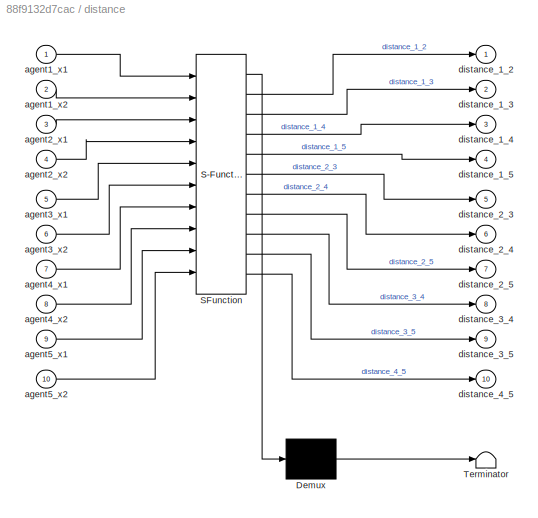
BLOCK [SubSystem] distance
  ErrorFcn = Stateflow.Translate.translate
  PermitHierarchicalResolution = ExplicitOnly
  Ports = [10, 10]
  RequestExecContextInheritance = off
  SFBlockType = MATLAB Function
  TreatAsAtomicUnit = on
BLOCK [Demux] distance/ Demux 
  Outputs = 1
  Ports = [1, 1]
BLOCK [S-Function] distance/ SFunction 
  EnableBusSupport = on
  FunctionName = sf_sfun
  PortCounts = [10 11]
  Ports = [10, 11]
  SFcnIsStateOwnerBlock = off
  SFunctionDeploymentMode = off
  Tag = Stateflow S-Function 25
BLOCK [Terminator] distance/ Terminator 
BLOCK [Inport] distance/agent1_x1
BLOCK [Inport] distance/agent1_x2
  Port = 2
BLOCK [Inport] distance/agent2_x1
  Port = 3
BLOCK [Inport] distance/agent2_x2
  Port = 4
BLOCK [Inport] distance/agent3_x1
  Port = 5
BLOCK [Inport] distance/agent3_x2
  Port = 6
BLOCK [Inport] distance/agent4_x1
  Port = 7
BLOCK [Inport] distance/agent4_x2
  Port = 8
BLOCK [Inport] distance/agent5_x1
  Port = 9
BLOCK [Inport] distance/agent5_x2
  Port = 10
BLOCK [Outport] distance/distance_1_2
BLOCK [Outport] distance/distance_1_3
  Port = 2
BLOCK [Outport] distance/distance_1_4
  Port = 3
BLOCK [Outport] distance/distance_1_5
  Port = 4
BLOCK [Outport] distance/distance_2_3
  Port = 5
BLOCK [Outport] distance/distance_2_4
  Port = 6
BLOCK [Outport] distance/distance_2_5
  Port = 7
BLOCK [Outport] distance/distance_3_4
  Port = 8
BLOCK [Outport] distance/distance_3_5
  Port = 9
BLOCK [Outport] distance/distance_4_5
  Port = 10
NET agent_0/Clock:1 -> agent_0/Potential_Field_controller:4, agent_0/STL_barrier :1, agent_0/STL_controller:5
LINE agent_0/Derivative:1 -> agent_0/Scope6:1
NET agent_0/Integrator1:1 -> agent_0/1_y:1, agent_0/MATLAB Function:2, agent_0/Potential_Field_controller:2, agent_0/STL_barrier :3, agent_0/STL_controller:2, agent_0/XY Graph:2
NET agent_0/Integrator2:1 -> agent_0/Potential_Field_controller:3, agent_0/STL_controller:4, agent_0/Scope3:1, agent_0/omnidirectional robot_1:4, agent_0/velocity_constraint:4
NET agent_0/Integrator:1 -> agent_0/1_a:1, agent_0/MATLAB Function:1, agent_0/Potential_Field_controller:1, agent_0/STL_barrier :2, agent_0/STL_controller:1, agent_0/XY Graph:1
LINE agent_0/MATLAB Function1:1 -> agent_0/velocity_constraint:1
LINE agent_0/MATLAB Function1:2 -> agent_0/velocity_constraint:2
LINE agent_0/MATLAB Function1:3 -> agent_0/velocity_constraint:3
LINE agent_0/MATLAB Function2:1 -> agent_0/Scope4:1
NET agent_0/MATLAB Function:1 -> agent_0/Derivative:1, agent_0/Scope5:1
LINE agent_0/Potential_Field_controller:1 -> agent_0/MATLAB Function1:4
LINE agent_0/Potential_Field_controller:2 -> agent_0/MATLAB Function1:5
LINE agent_0/Potential_Field_controller:3 -> agent_0/MATLAB Function1:6
LINE agent_0/Potential_Field_controller:4 -> agent_0/Scope7:1
NET agent_0/STL_barrier :1 -> agent_0/STL_controller:3, agent_0/Scope2:1
LINE agent_0/STL_barrier :2 -> agent_0/MATLAB Function1:7
LINE agent_0/STL_barrier :3 -> agent_0/Scope1:1
LINE agent_0/STL_barrier :4 -> agent_0/Scope1:2
LINE agent_0/STL_controller:1 -> agent_0/MATLAB Function1:1
LINE agent_0/STL_controller:2 -> agent_0/MATLAB Function1:2
LINE agent_0/STL_controller:3 -> agent_0/MATLAB Function1:3
NET agent_0/omnidirectional robot_1:1 -> agent_0/Integrator:1, agent_0/MATLAB Function2:1
NET agent_0/omnidirectional robot_1:2 -> agent_0/Integrator1:1, agent_0/MATLAB Function2:2
LINE agent_0/omnidirectional robot_1:3 -> agent_0/Integrator2:1
NET agent_0/v_max:1 -> agent_0/Potential_Field_controller:5, agent_0/STL_controller:6, agent_0/Scope4:2, agent_0/velocity_constraint:5
NET agent_0/velocity_constraint:1 -> agent_0/Scope:1, agent_0/omnidirectional robot_1:1
NET agent_0/velocity_constraint:2 -> agent_0/Scope:2, agent_0/omnidirectional robot_1:2
NET agent_0/velocity_constraint:3 -> agent_0/Scope:3, agent_0/omnidirectional robot_1:3
NET agent_1/Clock:1 -> agent_1/Potential_Field_controller:12, agent_1/STL_barrier :1, agent_1/STL_controller:5
LINE agent_1/Derivative:1 -> agent_1/Scope6:1
NET agent_1/Integrator1:1 -> agent_1/1_y:1, agent_1/MATLAB Function:2, agent_1/Potential_Field_controller:2, agent_1/STL_barrier :3, agent_1/STL_controller:2, agent_1/XY Graph:2, agent_1/agent1_x2:1
NET agent_1/Integrator2:1 -> agent_1/Potential_Field_controller:3, agent_1/STL_controller:4, agent_1/Scope3:1, agent_1/omnidirectional robot_1:4, agent_1/velocity_constraint:4
NET agent_1/Integrator:1 -> agent_1/1_a:1, agent_1/MATLAB Function:1, agent_1/Potential_Field_controller:1, agent_1/STL_barrier :2, agent_1/STL_controller:1, agent_1/XY Graph:1, agent_1/agent1_x1:1
LINE agent_1/MATLAB Function1:1 -> agent_1/velocity_constraint:1
LINE agent_1/MATLAB Function1:2 -> agent_1/velocity_constraint:2
LINE agent_1/MATLAB Function1:3 -> agent_1/velocity_constraint:3
LINE agent_1/MATLAB Function2:1 -> agent_1/Scope4:1
NET agent_1/MATLAB Function:1 -> agent_1/Derivative:1, agent_1/Scope5:1
LINE agent_1/Potential_Field_controller:1 -> agent_1/MATLAB Function1:4
LINE agent_1/Potential_Field_controller:2 -> agent_1/MATLAB Function1:5
LINE agent_1/Potential_Field_controller:3 -> agent_1/MATLAB Function1:6
LINE agent_1/Potential_Field_controller:4 -> agent_1/Scope7:1
NET agent_1/STL_barrier :1 -> agent_1/STL_controller:3, agent_1/Scope2:1
LINE agent_1/STL_barrier :2 -> agent_1/MATLAB Function1:7
LINE agent_1/STL_barrier :3 -> agent_1/Scope1:1
LINE agent_1/STL_barrier :4 -> agent_1/Scope1:2
LINE agent_1/STL_barrier :5 -> agent_1/Scope8:1
LINE agent_1/STL_barrier :6 -> agent_1/Scope8:2
LINE agent_1/STL_controller:1 -> agent_1/MATLAB Function1:1
LINE agent_1/STL_controller:2 -> agent_1/MATLAB Function1:2
LINE agent_1/STL_controller:3 -> agent_1/MATLAB Function1:3
LINE agent_1/STL_controller:4 -> agent_1/Scope9:1
NET agent_1/agent2_x1:1 -> agent_1/Potential_Field_controller:4, agent_1/STL_barrier :4
NET agent_1/agent2_x2:1 -> agent_1/Potential_Field_controller:5, agent_1/STL_barrier :5
NET agent_1/agent3_x1:1 -> agent_1/Potential_Field_controller:6, agent_1/STL_barrier :6
NET agent_1/agent3_x2:1 -> agent_1/Potential_Field_controller:7, agent_1/STL_barrier :7
NET agent_1/agent4_x1:1 -> agent_1/Potential_Field_controller:8, agent_1/STL_barrier :8
NET agent_1/agent4_x2:1 -> agent_1/Potential_Field_controller:9, agent_1/STL_barrier :9
NET agent_1/agent5_x1:1 -> agent_1/Potential_Field_controller:10, agent_1/STL_barrier :10
NET agent_1/agent5_x2:1 -> agent_1/Potential_Field_controller:11, agent_1/STL_barrier :11
NET agent_1/omnidirectional robot_1:1 -> agent_1/Integrator:1, agent_1/MATLAB Function2:1
NET agent_1/omnidirectional robot_1:2 -> agent_1/Integrator1:1, agent_1/MATLAB Function2:2
LINE agent_1/omnidirectional robot_1:3 -> agent_1/Integrator2:1
NET agent_1/v_max:1 -> agent_1/Potential_Field_controller:13, agent_1/STL_controller:6, agent_1/Scope4:2, agent_1/velocity_constraint:5
NET agent_1/velocity_constraint:1 -> agent_1/Scope:1, agent_1/omnidirectional robot_1:1
NET agent_1/velocity_constraint:2 -> agent_1/Scope:2, agent_1/omnidirectional robot_1:2
NET agent_1/velocity_constraint:3 -> agent_1/Scope:3, agent_1/omnidirectional robot_1:3
NET agent_1:1 -> agent_2:1, agent_3:1, agent_4:1, agent_5:1, distance:1
NET agent_1:2 -> agent_2:2, agent_3:2, agent_4:2, agent_5:2, distance:2
NET agent_2/Clock:1 -> agent_2/Potential_Field_controller:12, agent_2/STL_barrier :1, agent_2/STL_controller:5
LINE agent_2/Derivative:1 -> agent_2/Scope6:1
NET agent_2/Integrator1:1 -> agent_2/1_y:1, agent_2/MATLAB Function:2, agent_2/Potential_Field_controller:2, agent_2/STL_barrier :3, agent_2/STL_controller:2, agent_2/XY Graph:2, agent_2/agent2_x2:1
NET agent_2/Integrator2:1 -> agent_2/Potential_Field_controller:3, agent_2/STL_controller:4, agent_2/Scope3:1, agent_2/omnidirectional robot_1:4, agent_2/velocity_constraint:4
NET agent_2/Integrator:1 -> agent_2/1_a:1, agent_2/MATLAB Function:1, agent_2/Potential_Field_controller:1, agent_2/STL_barrier :2, agent_2/STL_controller:1, agent_2/XY Graph:1, agent_2/agent2_x1:1
LINE agent_2/MATLAB Function1:1 -> agent_2/velocity_constraint:1
LINE agent_2/MATLAB Function1:2 -> agent_2/velocity_constraint:2
LINE agent_2/MATLAB Function1:3 -> agent_2/velocity_constraint:3
LINE agent_2/MATLAB Function2:1 -> agent_2/Scope4:1
NET agent_2/MATLAB Function:1 -> agent_2/Derivative:1, agent_2/Scope5:1
LINE agent_2/Potential_Field_controller:1 -> agent_2/MATLAB Function1:4
LINE agent_2/Potential_Field_controller:2 -> agent_2/MATLAB Function1:5
LINE agent_2/Potential_Field_controller:3 -> agent_2/MATLAB Function1:6
LINE agent_2/Potential_Field_controller:4 -> agent_2/Scope7:1
NET agent_2/STL_barrier :1 -> agent_2/STL_controller:3, agent_2/Scope2:1
LINE agent_2/STL_barrier :2 -> agent_2/MATLAB Function1:7
LINE agent_2/STL_barrier :3 -> agent_2/Scope1:1
LINE agent_2/STL_barrier :4 -> agent_2/Scope1:2
LINE agent_2/STL_controller:1 -> agent_2/MATLAB Function1:1
LINE agent_2/STL_controller:2 -> agent_2/MATLAB Function1:2
LINE agent_2/STL_controller:3 -> agent_2/MATLAB Function1:3
NET agent_2/agent1_x1:1 -> agent_2/Potential_Field_controller:4, agent_2/STL_barrier :4
NET agent_2/agent1_x2:1 -> agent_2/Potential_Field_controller:5, agent_2/STL_barrier :5
NET agent_2/agent3_x1:1 -> agent_2/Potential_Field_controller:6, agent_2/STL_barrier :6
NET agent_2/agent3_x2:1 -> agent_2/Potential_Field_controller:7, agent_2/STL_barrier :7
NET agent_2/agent4_x1:1 -> agent_2/Potential_Field_controller:8, agent_2/STL_barrier :8
NET agent_2/agent4_x2:1 -> agent_2/Potential_Field_controller:9, agent_2/STL_barrier :9
NET agent_2/agent5_x1:1 -> agent_2/Potential_Field_controller:10, agent_2/STL_barrier :10
NET agent_2/agent5_x2:1 -> agent_2/Potential_Field_controller:11, agent_2/STL_barrier :11
NET agent_2/omnidirectional robot_1:1 -> agent_2/Integrator:1, agent_2/MATLAB Function2:1
NET agent_2/omnidirectional robot_1:2 -> agent_2/Integrator1:1, agent_2/MATLAB Function2:2
LINE agent_2/omnidirectional robot_1:3 -> agent_2/Integrator2:1
NET agent_2/v_max:1 -> agent_2/Potential_Field_controller:13, agent_2/STL_controller:6, agent_2/Scope4:2, agent_2/velocity_constraint:5
NET agent_2/velocity_constraint:1 -> agent_2/Scope:1, agent_2/omnidirectional robot_1:1
NET agent_2/velocity_constraint:2 -> agent_2/Scope:2, agent_2/omnidirectional robot_1:2
NET agent_2/velocity_constraint:3 -> agent_2/Scope:3, agent_2/omnidirectional robot_1:3
NET agent_2:1 -> agent_1:1, agent_3:3, agent_4:3, agent_5:3, distance:3
NET agent_2:2 -> agent_1:2, agent_3:4, agent_4:4, agent_5:4, distance:4
NET agent_3/Clock:1 -> agent_3/Potential_Field_controller:12, agent_3/STL_barrier :1, agent_3/STL_controller:5
LINE agent_3/Derivative:1 -> agent_3/Scope6:1
NET agent_3/Integrator1:1 -> agent_3/1_y:1, agent_3/MATLAB Function:2, agent_3/Potential_Field_controller:2, agent_3/STL_barrier :3, agent_3/STL_controller:2, agent_3/XY Graph:2, agent_3/agent3_x2:1
NET agent_3/Integrator2:1 -> agent_3/Potential_Field_controller:3, agent_3/STL_controller:4, agent_3/Scope3:1, agent_3/omnidirectional robot_1:4, agent_3/velocity_constraint:4
NET agent_3/Integrator:1 -> agent_3/1_a:1, agent_3/MATLAB Function:1, agent_3/Potential_Field_controller:1, agent_3/STL_barrier :2, agent_3/STL_controller:1, agent_3/XY Graph:1, agent_3/agent3_x1:1
LINE agent_3/MATLAB Function1:1 -> agent_3/velocity_constraint:1
LINE agent_3/MATLAB Function1:2 -> agent_3/velocity_constraint:2
LINE agent_3/MATLAB Function1:3 -> agent_3/velocity_constraint:3
LINE agent_3/MATLAB Function2:1 -> agent_3/Scope4:1
NET agent_3/MATLAB Function:1 -> agent_3/Derivative:1, agent_3/Scope5:1
LINE agent_3/Potential_Field_controller:1 -> agent_3/MATLAB Function1:4
LINE agent_3/Potential_Field_controller:2 -> agent_3/MATLAB Function1:5
LINE agent_3/Potential_Field_controller:3 -> agent_3/MATLAB Function1:6
LINE agent_3/Potential_Field_controller:4 -> agent_3/Scope7:1
NET agent_3/STL_barrier :1 -> agent_3/STL_controller:3, agent_3/Scope2:1
LINE agent_3/STL_barrier :2 -> agent_3/MATLAB Function1:7
LINE agent_3/STL_barrier :3 -> agent_3/Scope1:1
LINE agent_3/STL_barrier :4 -> agent_3/Scope1:2
LINE agent_3/STL_controller:1 -> agent_3/MATLAB Function1:1
LINE agent_3/STL_controller:2 -> agent_3/MATLAB Function1:2
LINE agent_3/STL_controller:3 -> agent_3/MATLAB Function1:3
NET agent_3/agent1_x1:1 -> agent_3/Potential_Field_controller:4, agent_3/STL_barrier :4
NET agent_3/agent1_x2:1 -> agent_3/Potential_Field_controller:5, agent_3/STL_barrier :5
NET agent_3/agent2_x1:1 -> agent_3/Potential_Field_controller:6, agent_3/STL_barrier :6
NET agent_3/agent2_x2:1 -> agent_3/Potential_Field_controller:7, agent_3/STL_barrier :7
NET agent_3/agent4_x1:1 -> agent_3/Potential_Field_controller:8, agent_3/STL_barrier :8
NET agent_3/agent4_x2:1 -> agent_3/Potential_Field_controller:9, agent_3/STL_barrier :9
NET agent_3/agent5_x1:1 -> agent_3/Potential_Field_controller:10, agent_3/STL_barrier :10
NET agent_3/agent5_x2:1 -> agent_3/Potential_Field_controller:11, agent_3/STL_barrier :11
NET agent_3/omnidirectional robot_1:1 -> agent_3/Integrator:1, agent_3/MATLAB Function2:1
NET agent_3/omnidirectional robot_1:2 -> agent_3/Integrator1:1, agent_3/MATLAB Function2:2
LINE agent_3/omnidirectional robot_1:3 -> agent_3/Integrator2:1
NET agent_3/v_max:1 -> agent_3/Potential_Field_controller:13, agent_3/STL_controller:6, agent_3/Scope4:2, agent_3/velocity_constraint:5
NET agent_3/velocity_constraint:1 -> agent_3/Scope:1, agent_3/omnidirectional robot_1:1
NET agent_3/velocity_constraint:2 -> agent_3/Scope:2, agent_3/omnidirectional robot_1:2
NET agent_3/velocity_constraint:3 -> agent_3/Scope:3, agent_3/omnidirectional robot_1:3
NET agent_3:1 -> agent_1:3, agent_2:3, agent_4:5, agent_5:5, distance:5
NET agent_3:2 -> agent_1:4, agent_2:4, agent_4:6, agent_5:6, distance:6
NET agent_4/Clock:1 -> agent_4/MATLAB Function1:8, agent_4/MATLAB Function3:1, agent_4/Potential_Field_controller:12, agent_4/STL_barrier :1, agent_4/STL_controller:5
LINE agent_4/Derivative:1 -> agent_4/Scope6:1
NET agent_4/Integrator1:1 -> agent_4/1_y:1, agent_4/MATLAB Function:2, agent_4/Potential_Field_controller:2, agent_4/STL_barrier :3, agent_4/STL_controller:2, agent_4/XY Graph:2, agent_4/agent4_x2:1
NET agent_4/Integrator2:1 -> agent_4/Potential_Field_controller:3, agent_4/STL_controller:4, agent_4/Scope3:1, agent_4/omnidirectional robot_1:4, agent_4/velocity_constraint:4
NET agent_4/Integrator:1 -> agent_4/1_a:1, agent_4/MATLAB Function:1, agent_4/Potential_Field_controller:1, agent_4/STL_barrier :2, agent_4/STL_controller:1, agent_4/XY Graph:1, agent_4/agent4_x1:1
LINE agent_4/MATLAB Function1:1 -> agent_4/velocity_constraint:1
LINE agent_4/MATLAB Function1:2 -> agent_4/velocity_constraint:2
LINE agent_4/MATLAB Function1:3 -> agent_4/velocity_constraint:3
LINE agent_4/MATLAB Function2:1 -> agent_4/Scope4:1
LINE agent_4/MATLAB Function3:1 -> agent_4/Scope8:1
LINE agent_4/MATLAB Function3:2 -> agent_4/Scope8:2
NET agent_4/MATLAB Function:1 -> agent_4/Derivative:1, agent_4/Scope5:1
LINE agent_4/Potential_Field_controller:1 -> agent_4/MATLAB Function1:4
LINE agent_4/Potential_Field_controller:2 -> agent_4/MATLAB Function1:5
LINE agent_4/Potential_Field_controller:3 -> agent_4/MATLAB Function1:6
LINE agent_4/Potential_Field_controller:4 -> agent_4/Scope7:1
NET agent_4/STL_barrier :1 -> agent_4/STL_controller:3, agent_4/Scope2:1
LINE agent_4/STL_barrier :2 -> agent_4/MATLAB Function1:7
LINE agent_4/STL_barrier :3 -> agent_4/Scope1:1
LINE agent_4/STL_barrier :4 -> agent_4/Scope1:2
LINE agent_4/STL_controller:1 -> agent_4/MATLAB Function1:1
LINE agent_4/STL_controller:2 -> agent_4/MATLAB Function1:2
LINE agent_4/STL_controller:3 -> agent_4/MATLAB Function1:3
NET agent_4/agent1_x1:1 -> agent_4/Potential_Field_controller:4, agent_4/STL_barrier :4
NET agent_4/agent1_x2:1 -> agent_4/Potential_Field_controller:5, agent_4/STL_barrier :5
NET agent_4/agent2_x1:1 -> agent_4/Potential_Field_controller:6, agent_4/STL_barrier :6
NET agent_4/agent2_x2:1 -> agent_4/Potential_Field_controller:7, agent_4/STL_barrier :7
NET agent_4/agent3_x1:1 -> agent_4/Potential_Field_controller:8, agent_4/STL_barrier :8
NET agent_4/agent3_x2:1 -> agent_4/Potential_Field_controller:9, agent_4/STL_barrier :9
NET agent_4/agent5_x1:1 -> agent_4/Potential_Field_controller:10, agent_4/STL_barrier :10
NET agent_4/agent5_x2:1 -> agent_4/Potential_Field_controller:11, agent_4/STL_barrier :11
NET agent_4/omnidirectional robot_1:1 -> agent_4/Integrator:1, agent_4/MATLAB Function2:1
NET agent_4/omnidirectional robot_1:2 -> agent_4/Integrator1:1, agent_4/MATLAB Function2:2
LINE agent_4/omnidirectional robot_1:3 -> agent_4/Integrator2:1
NET agent_4/v_max:1 -> agent_4/Potential_Field_controller:13, agent_4/STL_controller:6, agent_4/Scope4:2, agent_4/velocity_constraint:5
NET agent_4/velocity_constraint:1 -> agent_4/Scope:1, agent_4/omnidirectional robot_1:1
NET agent_4/velocity_constraint:2 -> agent_4/Scope:2, agent_4/omnidirectional robot_1:2
NET agent_4/velocity_constraint:3 -> agent_4/Scope:3, agent_4/omnidirectional robot_1:3
NET agent_4:1 -> agent_1:5, agent_2:5, agent_3:5, agent_5:7, distance:7
NET agent_4:2 -> agent_1:6, agent_2:6, agent_3:6, agent_5:8, distance:8
NET agent_5/Clock:1 -> agent_5/Potential_Field_controller:12, agent_5/STL_barrier :1, agent_5/STL_controller:5
LINE agent_5/Derivative:1 -> agent_5/Scope6:1
NET agent_5/Integrator1:1 -> agent_5/1_y:1, agent_5/MATLAB Function:2, agent_5/Potential_Field_controller:2, agent_5/STL_barrier :3, agent_5/STL_controller:2, agent_5/XY Graph:2, agent_5/agent5_x2:1
NET agent_5/Integrator2:1 -> agent_5/Potential_Field_controller:3, agent_5/STL_controller:4, agent_5/Scope3:1, agent_5/omnidirectional robot_1:4, agent_5/velocity_constraint:4
NET agent_5/Integrator:1 -> agent_5/1_a:1, agent_5/MATLAB Function:1, agent_5/Potential_Field_controller:1, agent_5/STL_barrier :2, agent_5/STL_controller:1, agent_5/XY Graph:1, agent_5/agent5_x1:1
LINE agent_5/MATLAB Function1:1 -> agent_5/velocity_constraint:1
LINE agent_5/MATLAB Function1:2 -> agent_5/velocity_constraint:2
LINE agent_5/MATLAB Function1:3 -> agent_5/velocity_constraint:3
LINE agent_5/MATLAB Function2:1 -> agent_5/Scope4:1
NET agent_5/MATLAB Function:1 -> agent_5/Derivative:1, agent_5/Scope5:1
LINE agent_5/Potential_Field_controller:1 -> agent_5/MATLAB Function1:4
LINE agent_5/Potential_Field_controller:2 -> agent_5/MATLAB Function1:5
LINE agent_5/Potential_Field_controller:3 -> agent_5/MATLAB Function1:6
LINE agent_5/Potential_Field_controller:4 -> agent_5/Scope7:1
NET agent_5/STL_barrier :1 -> agent_5/STL_controller:3, agent_5/Scope2:1
LINE agent_5/STL_barrier :2 -> agent_5/MATLAB Function1:7
LINE agent_5/STL_barrier :3 -> agent_5/Scope1:1
LINE agent_5/STL_barrier :4 -> agent_5/Scope1:2
LINE agent_5/STL_barrier :5 -> agent_5/Scope8:1
LINE agent_5/STL_barrier :6 -> agent_5/Scope8:2
LINE agent_5/STL_controller:1 -> agent_5/MATLAB Function1:1
LINE agent_5/STL_controller:2 -> agent_5/MATLAB Function1:2
LINE agent_5/STL_controller:3 -> agent_5/MATLAB Function1:3
NET agent_5/agent1_x1:1 -> agent_5/Potential_Field_controller:4, agent_5/STL_barrier :4
NET agent_5/agent1_x2:1 -> agent_5/Potential_Field_controller:5, agent_5/STL_barrier :5
NET agent_5/agent2_x1:1 -> agent_5/Potential_Field_controller:6, agent_5/STL_barrier :6
NET agent_5/agent2_x2:1 -> agent_5/Potential_Field_controller:7, agent_5/STL_barrier :7
NET agent_5/agent3_x1:1 -> agent_5/Potential_Field_controller:8, agent_5/STL_barrier :8
NET agent_5/agent3_x2:1 -> agent_5/Potential_Field_controller:9, agent_5/STL_barrier :9
NET agent_5/agent4_x1:1 -> agent_5/Potential_Field_controller:10, agent_5/STL_barrier :10
NET agent_5/agent4_x2:1 -> agent_5/Potential_Field_controller:11, agent_5/STL_barrier :11
NET agent_5/omnidirectional robot_1:1 -> agent_5/Integrator:1, agent_5/MATLAB Function2:1
NET agent_5/omnidirectional robot_1:2 -> agent_5/Integrator1:1, agent_5/MATLAB Function2:2
LINE agent_5/omnidirectional robot_1:3 -> agent_5/Integrator2:1
NET agent_5/v_max:1 -> agent_5/Potential_Field_controller:13, agent_5/STL_controller:6, agent_5/Scope4:2, agent_5/velocity_constraint:5
NET agent_5/velocity_constraint:1 -> agent_5/Scope:1, agent_5/omnidirectional robot_1:1
NET agent_5/velocity_constraint:2 -> agent_5/Scope:2, agent_5/omnidirectional robot_1:2
NET agent_5/velocity_constraint:3 -> agent_5/Scope:3, agent_5/omnidirectional robot_1:3
NET agent_5:1 -> agent_1:7, agent_2:7, agent_3:7, agent_4:7, distance:9
NET agent_5:2 -> agent_1:8, agent_2:8, agent_3:8, agent_4:8, distance:10
LINE distance:1 -> Scope:1
LINE distance:10 -> Scope9:1
LINE distance:2 -> Scope1:1
LINE distance:3 -> Scope2:1
LINE distance:4 -> Scope3:1
LINE distance:5 -> Scope4:1
LINE distance:6 -> Scope5:1
LINE distance:7 -> Scope6:1
LINE distance:8 -> Scope7:1
LINE distance:9 -> Scope8:1
note: NET lines group one-source signal fan-out (src -> all destinations, sorted); 1:1 wires keep LINE
CHART agent_1/MATLAB Function1 states=1 transitions=1
  STATE_LABEL 'eML_blk_kernel()'
  STATE_LABEL 'SCRIPT:\nfunction [U1,U2,U3] = fcn(STL_u1,STL_u2,STL_u3,PFM_u1,PFM_u2,PFM_u3,b1)\nU_goal=[STL_u1;STL_u2;STL_u3];\nU_obs=[PFM_u1;PFM_u2;PFM_u3];\nk=0.15;\nlambda=1-exp(-k*max(b1,0));\nU=lambda*U_goal+(1-lambda)*U_obs;\nU1=0;U2=0;U3=0;\nU1=U(1,1);\nU2=U(2,1);\nU3=U(3,1);\n\n'  <repeated x5 — deduplicated; at blocks: MATLAB Function1>
CHART agent_2/MATLAB Function states=1 transitions=1
  STATE_LABEL 'eML_blk_kernel()'
  STATE_LABEL 'SCRIPT:\nfunction theta = fcn(x1, y1)\ntheta=atan2(y1,x1);\n\n'
CHART agent_2/MATLAB Function1 states=1 transitions=1
  STATE_LABEL 'eML_blk_kernel()'
CHART agent_2/MATLAB Function2 states=1 transitions=1
  STATE_LABEL 'eML_blk_kernel()'
  STATE_LABEL 'SCRIPT:\nfunction v = fcn(v1, v2)\nv=sqrt(v1^2+v2^2);\n\n'
CHART agent_2/Potential_Field_controller states=1 transitions=1
  STATE_LABEL 'eML_blk_kernel()'
  STATE_LABEL "SCRIPT:\nfunction [u1,u2,u3,yita] = fcn(x1, x2, xa3,agent1_x1,agent1_x2,agent3_x1,agent3_x2,agent4_x1,agent4_x2,agent5_x1,agent5_x2,t,v_max)\ncoder.extrinsic('Calculate_gradient');\ncoder.extrinsic('Calculate_gradient_V1');\ncoder.extrinsic('Calculate_gradient_V1_yita');\ncoder.extrinsic('Calculate_gradient_static_d_1');\ncoder.extrinsic('Calculate_gradient_static_d_2');\ncoder.extrinsic('Calculate_gradi...<+2267ch>"
CHART agent_2/STL_barrier  states=1 transitions=1
  STATE_LABEL 'eML_blk_kernel()'
  STATE_LABEL 'SCRIPT:\nfunction [b,b1,yita,h] = fcn(t,p1,p2,agent1_x1,agent1_x2,agent3_x1,agent3_x2,agent4_x1,agent4_x2,agent5_x1,agent5_x2)\nif t<20\n    d1=0;\n    d2=100;\nelseif t>=20 && t<41\n    d1=50;\n    d2=0;\nelse\n    d1=100;\n    d2=0;  \nend\n\nobs1=50;\nobs2=50;\nif t<20\nb=145*exp(-0.24*t)+5-sqrt( (p1-d1)^2 + (p2-d2)^2 );\nyita=-145*exp(-0.24*t)+5;\nh=10-sqrt( (p1-d1)^2 + (p2-d2)^2 );\nelseif t>=20 && t<41\n    b=1...<+1172ch>'
CHART agent_2/STL_controller states=1 transitions=1
  STATE_LABEL 'eML_blk_kernel()'
  STATE_LABEL "SCRIPT:\nfunction [u1,u2,u3]= fcn(x1, x2, b_in, xa3,t, v_max)\ncoder.extrinsic('quadoptimizer');\n%coder.extrinsic('save');\nif t<20\n    d1=0; d2=100;\nelseif t>=20 && t<41\n   d1=50; d2=0; \nelse\n   d1=100; d2=0; \nend\n\npartial_b=(1/2)*((x1-d1)^2+(x2-d2)^2)^(-1/2);\npartial_b_x=[-2*partial_b*(x1-d1),-2*partial_b*(x2-d2),0];\n\n\nLi=0.2;\nBi=[0,cos(pi/6),-cos(pi/6);\n    -1,sin(pi/6),sin(pi/6);\n    Li,Li,Li;];\n...<+688ch>"
CHART agent_2/omnidirectional robot_1 states=1 transitions=1
  STATE_LABEL 'eML_blk_kernel()'
  STATE_LABEL "SCRIPT:\nfunction [xa1_dot,xa2_dot,xa3_dot]= fcn(ua1,ua2,ua3,xa3)\n\nLi=0.2;\nBi=[0,cos(pi/6),-cos(pi/6);\n    -1,sin(pi/6),sin(pi/6);\n    Li,Li,Li;];\n\nR1=[cos(xa3),-sin(xa3),0;\n    sin(xa3),cos(xa3),0;\n    0,0,1;];\nR=0.02;\nA=R1*inv(Bi')*R*[ua1;ua2;ua3];\nxa1_dot=A(1,1);\nxa2_dot=A(2,1);\nxa3_dot=A(3,1);\n"  <repeated x6 — deduplicated; at blocks: omnidirectional robot_1>
CHART agent_2/velocity_constraint states=1 transitions=1
  STATE_LABEL 'eML_blk_kernel()'
  STATE_LABEL "SCRIPT:\nfunction [Uc1,Uc2,Uc3] = fcn(U1,U2,U3,xa3,v_max)\n\nLi=0.2;\nBi=[0,cos(pi/6),-cos(pi/6);\n    -1,sin(pi/6),sin(pi/6);\n    Li,Li,Li;];\n\nR1=[cos(xa3),-sin(xa3),0;\n    sin(xa3),cos(xa3),0;\n    0,0,1;];\nR=0.02;\ngx=R1*inv(Bi')*R;\n\nU=[U1;U2;U3];\nV=[0;0;0];\nV=gx*U;\nif V(1,1)^2+V(2,1)^2<=v_max^2\n     U(1,1)= U(1,1);\n     U(2,1)= U(2,1);\nelse \n    U(1,1)=sqrt(v_max^2/(V(1,1)^2+V(2,1)^2))*U(1,1);\n    U(...<+140ch>"  <repeated x6 — deduplicated; at blocks: velocity_constraint>
CHART agent_0/MATLAB Function states=1 transitions=1
  STATE_LABEL 'eML_blk_kernel()'
  STATE_LABEL 'SCRIPT:\nfunction theta = fcn(x1, y1)\ntheta=atan2(y1,x1);\n\n'
CHART agent_0/MATLAB Function1 states=1 transitions=1
  STATE_LABEL 'eML_blk_kernel()'
CHART agent_0/MATLAB Function2 states=1 transitions=1
  STATE_LABEL 'eML_blk_kernel()'
  STATE_LABEL 'SCRIPT:\nfunction v = fcn(v1, v2)\nv=sqrt(v1^2+v2^2);\n\n'
CHART agent_0/Potential_Field_controller states=1 transitions=1
  STATE_LABEL 'eML_blk_kernel()'
  STATE_LABEL "SCRIPT:\nfunction [u1,u2,u3,yita] = fcn(x1, x2, xa3,t,v_max)\ncoder.extrinsic('Calculate_gradient');\ncoder.extrinsic('Calculate_gradient_V1');\ncoder.extrinsic('Calculate_gradient_V1_yita');\ncoder.extrinsic('Calculate_gradient_static_d_1');\ncoder.extrinsic('Calculate_gradient_static_d_2');\ncoder.extrinsic('compute_convex_hull');\ncoder.extrinsic('PVF_optimizer');\ncoder.extrinsic('add_random');\nyita=0;...<+1416ch>"
CHART agent_0/STL_barrier  states=1 transitions=1
  STATE_LABEL 'eML_blk_kernel()'
  STATE_LABEL 'SCRIPT:\nfunction [b,b1,yita,h] = fcn(t,p1,p2)\nif t<20\n    d1=0;\n    d2=100;\nelseif t>=20 && t<40\n    d1=0;\n    d2=100;\nelse\n    d1=100;\n    d2=0;  \nend\n\nobs1=50;\nobs2=50;\nif t<20\nb=145*exp(-0.24*t)+5-sqrt( (p1-d1)^2 + (p2-d2)^2 );\nyita=-145*exp(-0.24*t)+5;\nh=10-sqrt( (p1-d1)^2 + (p2-d2)^2 );\nelseif t>=20 && t<40\n    b=90*exp(-0.208*(t-20))+5-sqrt( (p1-d1)^2 + (p2-d2)^2 );\n   yita=-90*exp(-0.2295*(...<+702ch>'
CHART agent_1/STL_barrier  states=1 transitions=1
  STATE_LABEL 'eML_blk_kernel()'
  STATE_LABEL 'SCRIPT:\nfunction [b,b1,yita,h,yita_1,h_1] = fcn(t,p1,p2,agent2_x1,agent2_x2,agent3_x1,agent3_x2,agent4_x1,agent4_x2,agent5_x1,agent5_x2)\nd11=0;d22=0;\nif t<20\n    d1=100;\n    d2=100;\nelseif t>=20 && t<41\n    d1=0;d2=100;\n    d11=0;d22=70;\nelse\n    d1=100;\n    d2=0;  \nend\n\nobs1=50;\nobs2=50;\nyita_1=0;h_1=0;\nif t<20\n% b=125*exp(-0.2295*t)+5-sqrt( (p1-d1)^2 + (p2-d2)^2 );\n% yita=-125*exp(-0.2295*t)+5;\n...<+1325ch>'
CHART agent_1/MATLAB Function2 states=1 transitions=1
  STATE_LABEL 'eML_blk_kernel()'
  STATE_LABEL 'SCRIPT:\nfunction v = fcn(v1, v2)\nv=sqrt(v1^2+v2^2);\n\n'
CHART agent_1/velocity_constraint states=1 transitions=1
  STATE_LABEL 'eML_blk_kernel()'
CHART agent_0/STL_controller states=1 transitions=1
  STATE_LABEL 'eML_blk_kernel()'
  STATE_LABEL "SCRIPT:\nfunction [u1,u2,u3]= fcn(x1, x2, b_in, xa3,t, v_max)\ncoder.extrinsic('quadoptimizer');\n%coder.extrinsic('save');\nif t<20\n    d1=0; d2=100;\nelseif t>=20 && t<40\n   d1=0; d2=100; \nelse\n   d1=100; d2=0; \nend\n\npartial_b=(1/2)*((x1-d1)^2+(x2-d2)^2)^(-1/2);\npartial_b_x=[-2*partial_b*(x1-d1),-2*partial_b*(x2-d2),0];\n\n\nLi=0.2;\nBi=[0,cos(pi/6),-cos(pi/6);\n    -1,sin(pi/6),sin(pi/6);\n    Li,Li,Li;];...<+692ch>"
CHART agent_0/omnidirectional robot_1 states=1 transitions=1
  STATE_LABEL 'eML_blk_kernel()'
CHART agent_0/velocity_constraint states=1 transitions=1
  STATE_LABEL 'eML_blk_kernel()'
CHART distance states=1 transitions=1
  STATE_LABEL 'eML_blk_kernel()'
  STATE_LABEL 'SCRIPT:\nfunction [distance_1_2,distance_1_3,distance_1_4,distance_1_5,distance_2_3,distance_2_4,distance_2_5,distance_3_4,distance_3_5,distance_4_5]  = fcn(agent1_x1,agent1_x2,agent2_x1,agent2_x2,agent3_x1,agent3_x2,agent4_x1,agent4_x2,agent5_x1,agent5_x2)\ndistance_1_2=sqrt( (agent1_x1-agent2_x1)^2+ (agent1_x2-agent2_x2 )^2  );\ndistance_1_3=sqrt( (agent1_x1-agent3_x1)^2+ (agent1_x2-agent3_x2 )^2  ...<+588ch>'
CHART agent_3/MATLAB Function states=1 transitions=1
  STATE_LABEL 'eML_blk_kernel()'
  STATE_LABEL 'SCRIPT:\nfunction theta = fcn(x1, y1)\ntheta=atan2(y1,x1);\n\n'
CHART agent_3/MATLAB Function1 states=1 transitions=1
  STATE_LABEL 'eML_blk_kernel()'
CHART agent_3/MATLAB Function2 states=1 transitions=1
  STATE_LABEL 'eML_blk_kernel()'
  STATE_LABEL 'SCRIPT:\nfunction v = fcn(v1, v2)\nv=sqrt(v1^2+v2^2);\n\n'
CHART agent_3/Potential_Field_controller states=1 transitions=1
  STATE_LABEL 'eML_blk_kernel()'
  STATE_LABEL "SCRIPT:\nfunction [u1,u2,u3,yita] = fcn(x1, x2, xa3,agent1_x1,agent1_x2,agent2_x1,agent2_x2,agent4_x1,agent4_x2,agent5_x1,agent5_x2,t,v_max)\ncoder.extrinsic('Calculate_gradient');\ncoder.extrinsic('Calculate_gradient_V1');\ncoder.extrinsic('Calculate_gradient_V1_yita');\ncoder.extrinsic('Calculate_gradient_static_d_1');\ncoder.extrinsic('Calculate_gradient_static_d_2');\ncoder.extrinsic('Calculate_gradi...<+2273ch>"
CHART agent_3/STL_barrier  states=1 transitions=1
  STATE_LABEL 'eML_blk_kernel()'
  STATE_LABEL 'SCRIPT:\nfunction [b,b1,yita,h] = fcn(t,p1,p2,agent1_x1,agent1_x2,agent2_x1,agent2_x2,agent4_x1,agent4_x2,agent5_x1,agent5_x2)\nif t<20\n    d1=50;\n    d2=0;\nelseif t>=20 && t<41\n    d1=100;\n    d2=100;\nelse\n    d1=100;\n    d2=0;  \nend\n\nobs1=50;\nobs2=50;\nif t<20\nb=105*exp(-0.22*t)+5-sqrt( (p1-d1)^2 + (p2-d2)^2 );\nyita=-105*exp(-0.22*t)+5;\nh=10-sqrt( (p1-d1)^2 + (p2-d2)^2 );\nelseif t>=20 && t<41\n    b...<+1172ch>'
CHART agent_3/STL_controller states=1 transitions=1
  STATE_LABEL 'eML_blk_kernel()'
  STATE_LABEL "SCRIPT:\nfunction [u1,u2,u3]= fcn(x1, x2, b_in, xa3,t, v_max)\ncoder.extrinsic('quadoptimizer');\n%coder.extrinsic('save');\nif t<20\n    d1=50; d2=0;\nelseif t>=20 && t<41\n   d1=100; d2=100; \nelse\n   d1=100; d2=0; \nend\n\npartial_b=(1/2)*((x1-d1)^2+(x2-d2)^2)^(-1/2);\npartial_b_x=[-2*partial_b*(x1-d1),-2*partial_b*(x2-d2),0];\n\n\nLi=0.2;\nBi=[0,cos(pi/6),-cos(pi/6);\n    -1,sin(pi/6),sin(pi/6);\n    Li,Li,Li;]...<+688ch>"
CHART agent_3/omnidirectional robot_1 states=1 transitions=1
  STATE_LABEL 'eML_blk_kernel()'
CHART agent_3/velocity_constraint states=1 transitions=1
  STATE_LABEL 'eML_blk_kernel()'
CHART agent_4/MATLAB Function states=1 transitions=1
  STATE_LABEL 'eML_blk_kernel()'
  STATE_LABEL 'SCRIPT:\nfunction theta = fcn(x1, y1)\ntheta=atan2(y1,x1);\n\n'
CHART agent_4/MATLAB Function1 states=1 transitions=1
  STATE_LABEL 'eML_blk_kernel()'
  STATE_LABEL 'SCRIPT:\nfunction [U1,U2,U3] = fcn(STL_u1,STL_u2,STL_u3,PFM_u1,PFM_u2,PFM_u3,b1,t)\nU_goal=[STL_u1;STL_u2;STL_u3];\nU_obs=[PFM_u1;PFM_u2;PFM_u3];\nk=0.15;\nlambda=1-exp(-k*max(b1,0));\nU=lambda*U_goal+(1-lambda)*U_obs;\nU1=0;U2=0;U3=0;\nif t<=20\nU1=0;\nU2=0;\nU3=0;    \n% U1=U(1,1);\n% U2=U(2,1);\n% U3=U(3,1);\nelse\nU1=U(1,1);\nU2=U(2,1);\nU3=U(3,1);\nend\n\n'
CHART agent_1/omnidirectional robot_1 states=1 transitions=1
  STATE_LABEL 'eML_blk_kernel()'
CHART agent_4/MATLAB Function2 states=1 transitions=1
  STATE_LABEL 'eML_blk_kernel()'
  STATE_LABEL 'SCRIPT:\nfunction v = fcn(v1, v2)\nv=sqrt(v1^2+v2^2);\n\n'
CHART agent_4/Potential_Field_controller states=1 transitions=1
  STATE_LABEL 'eML_blk_kernel()'
  STATE_LABEL "SCRIPT:\nfunction [u1,u2,u3,yita] = fcn(x1, x2, xa3,agent1_x1,agent1_x2,agent2_x1,agent2_x2,agent3_x1,agent3_x2,agent5_x1,agent5_x2,t,v_max)\ncoder.extrinsic('Calculate_gradient');\ncoder.extrinsic('Calculate_gradient_V1');\ncoder.extrinsic('Calculate_gradient_V1_yita');\ncoder.extrinsic('Calculate_gradient_static_d_1');\ncoder.extrinsic('Calculate_gradient_static_d_2');\ncoder.extrinsic('Calculate_gradi...<+2352ch>"
CHART agent_4/STL_barrier  states=1 transitions=1
  STATE_LABEL 'eML_blk_kernel()'
  STATE_LABEL 'SCRIPT:\nfunction [b,b1,yita,h] = fcn(t,p1,p2,agent1_x1,agent1_x2,agent2_x1,agent2_x2,agent3_x1,agent3_x2,agent5_x1,agent5_x2)\nif t<20\n    d1=-45*cos(t)+50;\n    d2= 45*sin(t)+50;\nelseif t>=20 && t<41\n    d1=-45*cos(t-20)+50;\n    d2= 45*sin(t-20)+50;\nelse\n    d1=100;\n    d2=0;  \nend\n\nobs1=50;\nobs2=50;\nif t<20\n% b=105*exp(-0.22*t)+5-sqrt( (p1-d1)^2 + (p2-d2)^2 );\n% yita=-105*exp(-0.22*t)+5;\n% h=10-sq...<+1082ch>'
CHART agent_4/STL_controller states=1 transitions=1
  STATE_LABEL 'eML_blk_kernel()'
  STATE_LABEL "SCRIPT:\nfunction [u1,u2,u3]= fcn(x1, x2, b_in, xa3,t, v_max)\ncoder.extrinsic('quadoptimizer');\n%coder.extrinsic('save');\nif t<20\n    d1=-45*cos(t)+50; d2=45*sin(t)+50;\nelseif t>=20 && t<41\n%    d1=0; d2=100; \n    d1=-45*cos(t-20)+50; d2=45*sin(t-20)+50;\nelse\n   d1=100; d2=0; \nend\n\npartial_b=(1/2)*((x1-d1)^2+(x2-d2)^2)^(-1/2);\npartial_b_x=[-2*partial_b*(x1-d1),-2*partial_b*(x2-d2),0];\npartial_b_t= ...<+909ch>"
CHART agent_4/omnidirectional robot_1 states=1 transitions=1
  STATE_LABEL 'eML_blk_kernel()'
CHART agent_4/velocity_constraint states=1 transitions=1
  STATE_LABEL 'eML_blk_kernel()'
CHART agent_5/MATLAB Function states=1 transitions=1
  STATE_LABEL 'eML_blk_kernel()'
  STATE_LABEL 'SCRIPT:\nfunction theta = fcn(x1, y1)\ntheta=atan2(y1,x1);\n\n'
CHART agent_5/MATLAB Function1 states=1 transitions=1
  STATE_LABEL 'eML_blk_kernel()'
CHART agent_1/STL_controller states=1 transitions=1
  STATE_LABEL 'eML_blk_kernel()'
  STATE_LABEL "SCRIPT:\nfunction [u1,u2,u3,u4]= fcn(x1, x2, b_in, xa3,t, v_max)\ncoder.extrinsic('quadoptimizer');\n%coder.extrinsic('save');\nd11=0;d22=0;\nb_1=0;b_2=0;partial_b_t=0;\nif t<20\n    d1=100; d2=100;\nelseif t>=20 && t<41\n   d1=0; d2=100; \n   d11=0;d22=70;\n   b_1=100*exp(-0.215*(t-20))+5-sqrt( (x1-d1)^2 + (x2-d2)^2 );\n   b_2=105*exp(-0.22*(t-20))+5-sqrt( (x1-d11)^2 + (x2-d22)^2 );\nelse\n   d1=100; d2=0; \nen...<+1748ch>"
CHART agent_5/MATLAB Function2 states=1 transitions=1
  STATE_LABEL 'eML_blk_kernel()'
  STATE_LABEL 'SCRIPT:\nfunction v = fcn(v1, v2)\nv=sqrt(v1^2+v2^2);\n\n'
CHART agent_5/Potential_Field_controller states=1 transitions=1
  STATE_LABEL 'eML_blk_kernel()'
  STATE_LABEL "SCRIPT:\nfunction [u1,u2,u3,yita] = fcn(x1, x2, xa3,agent1_x1,agent1_x2,agent2_x1,agent2_x2,agent3_x1,agent3_x2,agent4_x1,agent4_x2,t,v_max)\ncoder.extrinsic('Calculate_gradient');\ncoder.extrinsic('Calculate_gradient_V1');\ncoder.extrinsic('Calculate_gradient_V1_yita');\ncoder.extrinsic('Calculate_gradient_static_d_1');\ncoder.extrinsic('Calculate_gradient_static_d_2');\ncoder.extrinsic('Calculate_gradi...<+1665ch>"
CHART agent_5/STL_barrier  states=1 transitions=1
  STATE_LABEL 'eML_blk_kernel()'
  STATE_LABEL 'SCRIPT:\nfunction [b,b1,yita,h,yita_1,h_1] = fcn(t,p1,p2,agent1_x1,agent1_x2,agent2_x1,agent2_x2,agent3_x1,agent3_x2,agent4_x1,agent4_x2)\nd11=0;d22=0;\nif t<20\n    d1=100;\n    d2=0;\nelseif t>=20 && t<41\n    d1=100;d2=100;\n    d11=110;d22=100;\nelse\n    d1=100;\n    d2=0;  \nend\nyita_1=0;h_1=0;\nobs1=50;\nobs2=50;\nif t<20\nb=145*exp(-0.24*t)+5-sqrt( (p1-d1)^2 + (p2-d2)^2 );\nyita=-145*exp(-0.24*t)+5;\nh=10-s...<+1115ch>'
CHART agent_5/STL_controller states=1 transitions=1
  STATE_LABEL 'eML_blk_kernel()'
  STATE_LABEL "SCRIPT:\nfunction [u1,u2,u3]= fcn(x1, x2, b_in, xa3,t, v_max)\ncoder.extrinsic('quadoptimizer');\n%coder.extrinsic('save');\nd11=0;d22=0;\nb_1=0;b_2=0;partial_b_t=0;\nif t<20\n    d1=100; d2=0;\nelseif t>=20 && t<41\n   d1=100; d2=100; \n   d11=110;d22=100;\n   b_1=100*exp(-0.215*(t-20))+5-sqrt( (x1-d1)^2 + (x2-d2)^2 );\n   b_2=100*exp(-0.215*(t-20))+5-sqrt( (x1-d11)^2 + (x2-d22)^2 );\nelse\n   d1=100; d2=0; \ne...<+1400ch>"
CHART agent_5/omnidirectional robot_1 states=1 transitions=1
  STATE_LABEL 'eML_blk_kernel()'
CHART agent_5/velocity_constraint states=1 transitions=1
  STATE_LABEL 'eML_blk_kernel()'
CHART agent_4/MATLAB Function3 states=1 transitions=1
  STATE_LABEL 'eML_blk_kernel()'
  STATE_LABEL 'SCRIPT:\nfunction [L1,L2] = fcn(t)\nif t<20\n    L1=0;\n    L2=50;\nelse\n    L1=-45*cos(t-20)+50;\n    L2= 45*sin(t-20)+50;\nend\n\n'
CHART agent_1/MATLAB Function states=1 transitions=1
  STATE_LABEL 'eML_blk_kernel()'
  STATE_LABEL 'SCRIPT:\nfunction theta = fcn(x1, y1)\ntheta=atan2(y1,x1);\n\n'
CHART agent_1/Potential_Field_controller states=1 transitions=1
  STATE_LABEL 'eML_blk_kernel()'
  STATE_LABEL "SCRIPT:\nfunction [u1,u2,u3,yita] = fcn(x1, x2,xa3,agent2_x1,agent2_x2,agent3_x1,agent3_x2,agent4_x1,agent4_x2,agent5_x1,agent5_x2,t,v_max)\ncoder.extrinsic('Calculate_gradient');\ncoder.extrinsic('Calculate_gradient_V1');\ncoder.extrinsic('Calculate_gradient_V1_yita');\ncoder.extrinsic('Calculate_gradient_static_d_1');\ncoder.extrinsic('Calculate_gradient_static_d_2');\ncoder.extrinsic('Calculate_gradie...<+2271ch>"
CHART  states=0 transitions=0
CHART  states=0 transitions=0
CHART  states=0 transitions=0
CHART  states=0 transitions=0
CHART  states=0 transitions=0
CHART  states=0 transitions=0
CHART  states=0 transitions=0
CHART  states=0 transitions=0
CHART  states=0 transitions=0
CHART  states=0 transitions=0
CHART  states=0 transitions=0
CHART  states=0 transitions=0
CHART  states=0 transitions=0
CHART  states=0 transitions=0
CHART  states=0 transitions=0
CHART  states=0 transitions=0
CHART  states=0 transitions=0
CHART  states=0 transitions=0
CHART  states=0 transitions=0
CHART  states=0 transitions=0
CHART  states=0 transitions=0
CHART  states=0 transitions=0
CHART  states=0 transitions=0
CHART  states=0 transitions=0
CHART  states=0 transitions=0
CHART  states=0 transitions=0
CHART  states=0 transitions=0
CHART  states=0 transitions=0
CHART  states=0 transitions=0
CHART  states=0 transitions=0
CHART  states=0 transitions=0
CHART  states=0 transitions=0
CHART  states=0 transitions=0
CHART  states=0 transitions=0
CHART  states=0 transitions=0
CHART  states=0 transitions=0
CHART  states=0 transitions=0
CHART  states=0 transitions=0
CHART  states=0 transitions=0
CHART  states=0 transitions=0
CHART  states=0 transitions=0
CHART  states=0 transitions=0
CHART  states=0 transitions=0
CHART  states=0 transitions=0
CHART  states=0 transitions=0
CHART  states=0 transitions=0
CHART  states=0 transitions=0
CHART  states=0 transitions=0
CHART  states=0 transitions=0
CHART  states=0 transitions=0
